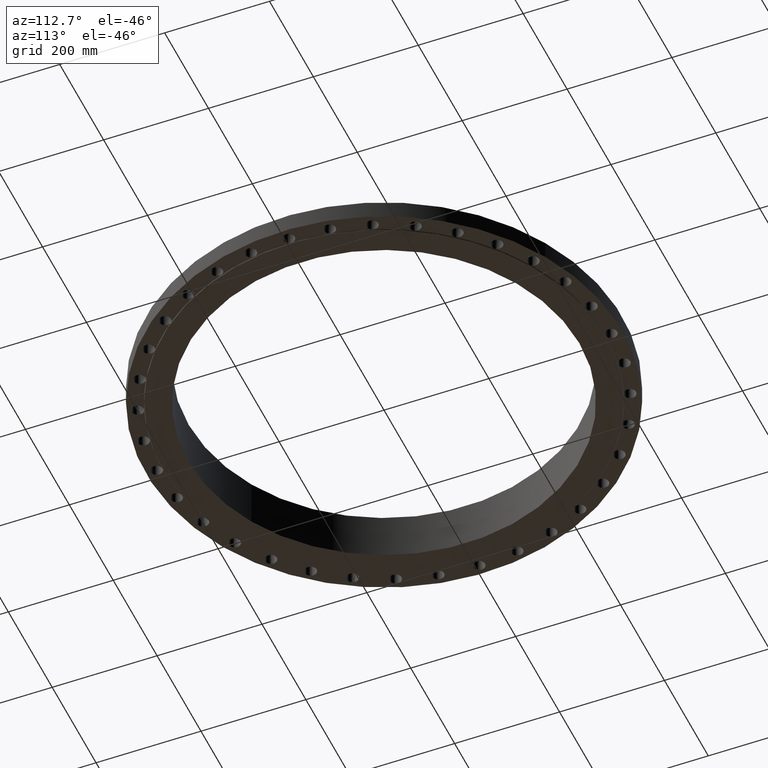
[diagram: clean part render]
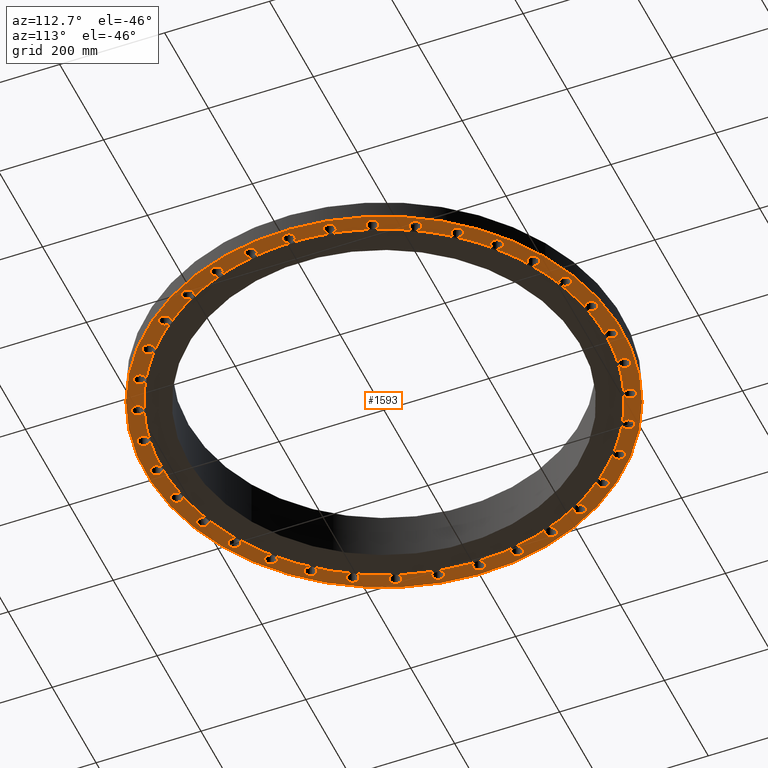
[diagram: same view with one face highlighted and labeled with its STEP entity id]
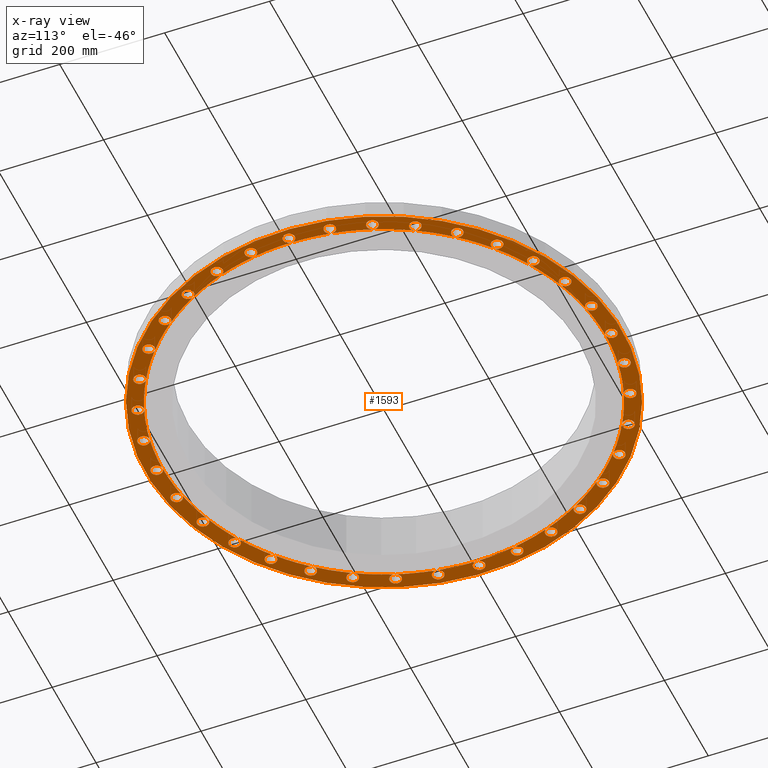
[diagram: x-ray of the same camera — body ghosted, the highlighted face saturated]
A machine part, auxiliary view. The second image highlights one B-rep face of the part: STEP entity #1593.
The next image is the same camera in x-ray: the body ghosted, the highlighted face saturated — about 0% of this face is hidden behind the body in this view.
In plain terms, the highlighted planar face has unit normal (0, 0, -1).
Its self-contained STEP definition (entity closure, byte-faithful):
#51=AXIS2_PLACEMENT_3D('Circle Axis2P3D',#49,#50,$) ;
#77=AXIS2_PLACEMENT_3D('Circle Axis2P3D',#75,#76,$) ;
#84=AXIS2_PLACEMENT_3D('Circle Axis2P3D',#82,#83,$) ;
#107=AXIS2_PLACEMENT_3D('Circle Axis2P3D',#105,#106,$) ;
#142=AXIS2_PLACEMENT_3D('Circle Axis2P3D',#140,#141,$) ;
#456=AXIS2_PLACEMENT_3D('Circle Axis2P3D',#454,#455,$) ;
#463=AXIS2_PLACEMENT_3D('Circle Axis2P3D',#461,#462,$) ;
#470=AXIS2_PLACEMENT_3D('Circle Axis2P3D',#468,#469,$) ;
#477=AXIS2_PLACEMENT_3D('Circle Axis2P3D',#475,#476,$) ;
#484=AXIS2_PLACEMENT_3D('Circle Axis2P3D',#482,#483,$) ;
#491=AXIS2_PLACEMENT_3D('Circle Axis2P3D',#489,#490,$) ;
#498=AXIS2_PLACEMENT_3D('Circle Axis2P3D',#496,#497,$) ;
#503=AXIS2_PLACEMENT_3D('Circle Axis2P3D',#501,#502,$) ;
#510=AXIS2_PLACEMENT_3D('Circle Axis2P3D',#508,#509,$) ;
#517=AXIS2_PLACEMENT_3D('Circle Axis2P3D',#515,#516,$) ;
#524=AXIS2_PLACEMENT_3D('Circle Axis2P3D',#522,#523,$) ;
#531=AXIS2_PLACEMENT_3D('Circle Axis2P3D',#529,#530,$) ;
#538=AXIS2_PLACEMENT_3D('Circle Axis2P3D',#536,#537,$) ;
#545=AXIS2_PLACEMENT_3D('Circle Axis2P3D',#543,#544,$) ;
#552=AXIS2_PLACEMENT_3D('Circle Axis2P3D',#550,#551,$) ;
#559=AXIS2_PLACEMENT_3D('Circle Axis2P3D',#557,#558,$) ;
#566=AXIS2_PLACEMENT_3D('Circle Axis2P3D',#564,#565,$) ;
#573=AXIS2_PLACEMENT_3D('Circle Axis2P3D',#571,#572,$) ;
#580=AXIS2_PLACEMENT_3D('Circle Axis2P3D',#578,#579,$) ;
#617=AXIS2_PLACEMENT_3D('Circle Axis2P3D',#615,#616,$) ;
#624=AXIS2_PLACEMENT_3D('Circle Axis2P3D',#622,#623,$) ;
#631=AXIS2_PLACEMENT_3D('Circle Axis2P3D',#629,#630,$) ;
#638=AXIS2_PLACEMENT_3D('Circle Axis2P3D',#636,#637,$) ;
#645=AXIS2_PLACEMENT_3D('Circle Axis2P3D',#643,#644,$) ;
#652=AXIS2_PLACEMENT_3D('Circle Axis2P3D',#650,#651,$) ;
#659=AXIS2_PLACEMENT_3D('Circle Axis2P3D',#657,#658,$) ;
#666=AXIS2_PLACEMENT_3D('Circle Axis2P3D',#664,#665,$) ;
#673=AXIS2_PLACEMENT_3D('Circle Axis2P3D',#671,#672,$) ;
#680=AXIS2_PLACEMENT_3D('Circle Axis2P3D',#678,#679,$) ;
#687=AXIS2_PLACEMENT_3D('Circle Axis2P3D',#685,#686,$) ;
#694=AXIS2_PLACEMENT_3D('Circle Axis2P3D',#692,#693,$) ;
#701=AXIS2_PLACEMENT_3D('Circle Axis2P3D',#699,#700,$) ;
#708=AXIS2_PLACEMENT_3D('Circle Axis2P3D',#706,#707,$) ;
#715=AXIS2_PLACEMENT_3D('Circle Axis2P3D',#713,#714,$) ;
#722=AXIS2_PLACEMENT_3D('Circle Axis2P3D',#720,#721,$) ;
#729=AXIS2_PLACEMENT_3D('Circle Axis2P3D',#727,#728,$) ;
#736=AXIS2_PLACEMENT_3D('Circle Axis2P3D',#734,#735,$) ;
#743=AXIS2_PLACEMENT_3D('Circle Axis2P3D',#741,#742,$) ;
#774=AXIS2_PLACEMENT_3D('Plane Axis2P3D',#771,#772,#773) ;
#782=AXIS2_PLACEMENT_3D('Circle Axis2P3D',#780,#781,$) ;
#789=AXIS2_PLACEMENT_3D('Circle Axis2P3D',#787,#788,$) ;
#796=AXIS2_PLACEMENT_3D('Circle Axis2P3D',#794,#795,$) ;
#801=AXIS2_PLACEMENT_3D('Circle Axis2P3D',#799,#800,$) ;
#808=AXIS2_PLACEMENT_3D('Circle Axis2P3D',#806,#807,$) ;
#815=AXIS2_PLACEMENT_3D('Circle Axis2P3D',#813,#814,$) ;
#820=AXIS2_PLACEMENT_3D('Circle Axis2P3D',#818,#819,$) ;
#827=AXIS2_PLACEMENT_3D('Circle Axis2P3D',#825,#826,$) ;
#834=AXIS2_PLACEMENT_3D('Circle Axis2P3D',#832,#833,$) ;
#839=AXIS2_PLACEMENT_3D('Circle Axis2P3D',#837,#838,$) ;
#846=AXIS2_PLACEMENT_3D('Circle Axis2P3D',#844,#845,$) ;
#853=AXIS2_PLACEMENT_3D('Circle Axis2P3D',#851,#852,$) ;
#858=AXIS2_PLACEMENT_3D('Circle Axis2P3D',#856,#857,$) ;
#865=AXIS2_PLACEMENT_3D('Circle Axis2P3D',#863,#864,$) ;
#872=AXIS2_PLACEMENT_3D('Circle Axis2P3D',#870,#871,$) ;
#877=AXIS2_PLACEMENT_3D('Circle Axis2P3D',#875,#876,$) ;
#884=AXIS2_PLACEMENT_3D('Circle Axis2P3D',#882,#883,$) ;
#891=AXIS2_PLACEMENT_3D('Circle Axis2P3D',#889,#890,$) ;
#896=AXIS2_PLACEMENT_3D('Circle Axis2P3D',#894,#895,$) ;
#903=AXIS2_PLACEMENT_3D('Circle Axis2P3D',#901,#902,$) ;
#910=AXIS2_PLACEMENT_3D('Circle Axis2P3D',#908,#909,$) ;
#915=AXIS2_PLACEMENT_3D('Circle Axis2P3D',#913,#914,$) ;
#922=AXIS2_PLACEMENT_3D('Circle Axis2P3D',#920,#921,$) ;
#929=AXIS2_PLACEMENT_3D('Circle Axis2P3D',#927,#928,$) ;
#934=AXIS2_PLACEMENT_3D('Circle Axis2P3D',#932,#933,$) ;
#941=AXIS2_PLACEMENT_3D('Circle Axis2P3D',#939,#940,$) ;
#948=AXIS2_PLACEMENT_3D('Circle Axis2P3D',#946,#947,$) ;
#953=AXIS2_PLACEMENT_3D('Circle Axis2P3D',#951,#952,$) ;
#960=AXIS2_PLACEMENT_3D('Circle Axis2P3D',#958,#959,$) ;
#967=AXIS2_PLACEMENT_3D('Circle Axis2P3D',#965,#966,$) ;
#972=AXIS2_PLACEMENT_3D('Circle Axis2P3D',#970,#971,$) ;
#979=AXIS2_PLACEMENT_3D('Circle Axis2P3D',#977,#978,$) ;
#986=AXIS2_PLACEMENT_3D('Circle Axis2P3D',#984,#985,$) ;
#991=AXIS2_PLACEMENT_3D('Circle Axis2P3D',#989,#990,$) ;
#998=AXIS2_PLACEMENT_3D('Circle Axis2P3D',#996,#997,$) ;
#1005=AXIS2_PLACEMENT_3D('Circle Axis2P3D',#1003,#1004,$) ;
#1010=AXIS2_PLACEMENT_3D('Circle Axis2P3D',#1008,#1009,$) ;
#1017=AXIS2_PLACEMENT_3D('Circle Axis2P3D',#1015,#1016,$) ;
#1024=AXIS2_PLACEMENT_3D('Circle Axis2P3D',#1022,#1023,$) ;
#1029=AXIS2_PLACEMENT_3D('Circle Axis2P3D',#1027,#1028,$) ;
#1036=AXIS2_PLACEMENT_3D('Circle Axis2P3D',#1034,#1035,$) ;
#1043=AXIS2_PLACEMENT_3D('Circle Axis2P3D',#1041,#1042,$) ;
#1048=AXIS2_PLACEMENT_3D('Circle Axis2P3D',#1046,#1047,$) ;
#1055=AXIS2_PLACEMENT_3D('Circle Axis2P3D',#1053,#1054,$) ;
#1062=AXIS2_PLACEMENT_3D('Circle Axis2P3D',#1060,#1061,$) ;
#1067=AXIS2_PLACEMENT_3D('Circle Axis2P3D',#1065,#1066,$) ;
#1074=AXIS2_PLACEMENT_3D('Circle Axis2P3D',#1072,#1073,$) ;
#1081=AXIS2_PLACEMENT_3D('Circle Axis2P3D',#1079,#1080,$) ;
#1086=AXIS2_PLACEMENT_3D('Circle Axis2P3D',#1084,#1085,$) ;
#1093=AXIS2_PLACEMENT_3D('Circle Axis2P3D',#1091,#1092,$) ;
#1100=AXIS2_PLACEMENT_3D('Circle Axis2P3D',#1098,#1099,$) ;
#1105=AXIS2_PLACEMENT_3D('Circle Axis2P3D',#1103,#1104,$) ;
#1112=AXIS2_PLACEMENT_3D('Circle Axis2P3D',#1110,#1111,$) ;
#1119=AXIS2_PLACEMENT_3D('Circle Axis2P3D',#1117,#1118,$) ;
#1124=AXIS2_PLACEMENT_3D('Circle Axis2P3D',#1122,#1123,$) ;
#1131=AXIS2_PLACEMENT_3D('Circle Axis2P3D',#1129,#1130,$) ;
#1138=AXIS2_PLACEMENT_3D('Circle Axis2P3D',#1136,#1137,$) ;
#1143=AXIS2_PLACEMENT_3D('Circle Axis2P3D',#1141,#1142,$) ;
#1150=AXIS2_PLACEMENT_3D('Circle Axis2P3D',#1148,#1149,$) ;
#1157=AXIS2_PLACEMENT_3D('Circle Axis2P3D',#1155,#1156,$) ;
#1162=AXIS2_PLACEMENT_3D('Circle Axis2P3D',#1160,#1161,$) ;
#1169=AXIS2_PLACEMENT_3D('Circle Axis2P3D',#1167,#1168,$) ;
#1176=AXIS2_PLACEMENT_3D('Circle Axis2P3D',#1174,#1175,$) ;
#1181=AXIS2_PLACEMENT_3D('Circle Axis2P3D',#1179,#1180,$) ;
#1188=AXIS2_PLACEMENT_3D('Circle Axis2P3D',#1186,#1187,$) ;
#1195=AXIS2_PLACEMENT_3D('Circle Axis2P3D',#1193,#1194,$) ;
#1200=AXIS2_PLACEMENT_3D('Circle Axis2P3D',#1198,#1199,$) ;
#1207=AXIS2_PLACEMENT_3D('Circle Axis2P3D',#1205,#1206,$) ;
#1214=AXIS2_PLACEMENT_3D('Circle Axis2P3D',#1212,#1213,$) ;
#1219=AXIS2_PLACEMENT_3D('Circle Axis2P3D',#1217,#1218,$) ;
#1226=AXIS2_PLACEMENT_3D('Circle Axis2P3D',#1224,#1225,$) ;
#1233=AXIS2_PLACEMENT_3D('Circle Axis2P3D',#1231,#1232,$) ;
#1238=AXIS2_PLACEMENT_3D('Circle Axis2P3D',#1236,#1237,$) ;
#1245=AXIS2_PLACEMENT_3D('Circle Axis2P3D',#1243,#1244,$) ;
#1252=AXIS2_PLACEMENT_3D('Circle Axis2P3D',#1250,#1251,$) ;
#1257=AXIS2_PLACEMENT_3D('Circle Axis2P3D',#1255,#1256,$) ;
#1264=AXIS2_PLACEMENT_3D('Circle Axis2P3D',#1262,#1263,$) ;
#1271=AXIS2_PLACEMENT_3D('Circle Axis2P3D',#1269,#1270,$) ;
#1276=AXIS2_PLACEMENT_3D('Circle Axis2P3D',#1274,#1275,$) ;
#1283=AXIS2_PLACEMENT_3D('Circle Axis2P3D',#1281,#1282,$) ;
#1290=AXIS2_PLACEMENT_3D('Circle Axis2P3D',#1288,#1289,$) ;
#1295=AXIS2_PLACEMENT_3D('Circle Axis2P3D',#1293,#1294,$) ;
#1302=AXIS2_PLACEMENT_3D('Circle Axis2P3D',#1300,#1301,$) ;
#1309=AXIS2_PLACEMENT_3D('Circle Axis2P3D',#1307,#1308,$) ;
#1314=AXIS2_PLACEMENT_3D('Circle Axis2P3D',#1312,#1313,$) ;
#1321=AXIS2_PLACEMENT_3D('Circle Axis2P3D',#1319,#1320,$) ;
#1328=AXIS2_PLACEMENT_3D('Circle Axis2P3D',#1326,#1327,$) ;
#1333=AXIS2_PLACEMENT_3D('Circle Axis2P3D',#1331,#1332,$) ;
#1340=AXIS2_PLACEMENT_3D('Circle Axis2P3D',#1338,#1339,$) ;
#1347=AXIS2_PLACEMENT_3D('Circle Axis2P3D',#1345,#1346,$) ;
#1352=AXIS2_PLACEMENT_3D('Circle Axis2P3D',#1350,#1351,$) ;
#1359=AXIS2_PLACEMENT_3D('Circle Axis2P3D',#1357,#1358,$) ;
#1366=AXIS2_PLACEMENT_3D('Circle Axis2P3D',#1364,#1365,$) ;
#1371=AXIS2_PLACEMENT_3D('Circle Axis2P3D',#1369,#1370,$) ;
#1378=AXIS2_PLACEMENT_3D('Circle Axis2P3D',#1376,#1377,$) ;
#1385=AXIS2_PLACEMENT_3D('Circle Axis2P3D',#1383,#1384,$) ;
#1390=AXIS2_PLACEMENT_3D('Circle Axis2P3D',#1388,#1389,$) ;
#1397=AXIS2_PLACEMENT_3D('Circle Axis2P3D',#1395,#1396,$) ;
#1404=AXIS2_PLACEMENT_3D('Circle Axis2P3D',#1402,#1403,$) ;
#1409=AXIS2_PLACEMENT_3D('Circle Axis2P3D',#1407,#1408,$) ;
#1416=AXIS2_PLACEMENT_3D('Circle Axis2P3D',#1414,#1415,$) ;
#1423=AXIS2_PLACEMENT_3D('Circle Axis2P3D',#1421,#1422,$) ;
#1428=AXIS2_PLACEMENT_3D('Circle Axis2P3D',#1426,#1427,$) ;
#1435=AXIS2_PLACEMENT_3D('Circle Axis2P3D',#1433,#1434,$) ;
#1442=AXIS2_PLACEMENT_3D('Circle Axis2P3D',#1440,#1441,$) ;
#44=CARTESIAN_POINT('Vertex',(16.6788636728,0.210947236987,0.)) ;
#49=CARTESIAN_POINT('Axis2P3D Location',(17.0650000001,0.,0.)) ;
#53=CARTESIAN_POINT('Vertex',(17.4511363273,-0.210947236987,0.)) ;
#75=CARTESIAN_POINT('Axis2P3D Location',(17.0650000001,0.,0.)) ;
#79=CARTESIAN_POINT('Vertex',(16.6250000001,1.88379168348E-014,1.95818864186E-015)) ;
#82=CARTESIAN_POINT('Axis2P3D Location',(17.0650000001,0.,0.)) ;
#105=CARTESIAN_POINT('Axis2P3D Location',(0.,0.,1.95818864186E-015)) ;
#109=CARTESIAN_POINT('Vertex',(-8.56973150258,-15.6867882939,1.95818864186E-015)) ;
#111=CARTESIAN_POINT('Vertex',(8.56973150258,15.6867882939,1.95818864186E-015)) ;
#140=CARTESIAN_POINT('Axis2P3D Location',(0.,0.,1.95818864186E-015)) ;
#451=CARTESIAN_POINT('Vertex',(7.97044957933,14.5898100915,1.95818864186E-015)) ;
#454=CARTESIAN_POINT('Axis2P3D Location',(0.,0.,1.95818864186E-015)) ;
#458=CARTESIAN_POINT('Vertex',(8.31250000003,14.397672338,0.)) ;
#461=CARTESIAN_POINT('Axis2P3D Location',(0.,0.,1.95818864186E-015)) ;
#465=CARTESIAN_POINT('Vertex',(10.6863440111,12.7354888669,0.)) ;
#468=CARTESIAN_POINT('Axis2P3D Location',(0.,0.,1.95818864186E-015)) ;
#472=CARTESIAN_POINT('Vertex',(12.7354888669,10.6863440111,0.)) ;
#475=CARTESIAN_POINT('Axis2P3D Location',(0.,0.,1.95818864186E-015)) ;
#479=CARTESIAN_POINT('Vertex',(14.397672338,8.31250000003,0.)) ;
#482=CARTESIAN_POINT('Axis2P3D Location',(0.,0.,1.95818864186E-015)) ;
#486=CARTESIAN_POINT('Vertex',(15.6223898206,5.68608488281,0.)) ;
#489=CARTESIAN_POINT('Axis2P3D Location',(0.,0.,1.95818864186E-015)) ;
#493=CARTESIAN_POINT('Vertex',(16.3724288939,2.88690095372,0.)) ;
#496=CARTESIAN_POINT('Axis2P3D Location',(0.,0.,1.95818864186E-015)) ;
#501=CARTESIAN_POINT('Axis2P3D Location',(0.,0.,1.95818864186E-015)) ;
#505=CARTESIAN_POINT('Vertex',(16.3724288939,-2.88690095372,0.)) ;
#508=CARTESIAN_POINT('Axis2P3D Location',(0.,0.,1.95818864186E-015)) ;
#512=CARTESIAN_POINT('Vertex',(15.6223898206,-5.68608488281,0.)) ;
#515=CARTESIAN_POINT('Axis2P3D Location',(0.,0.,1.95818864186E-015)) ;
#519=CARTESIAN_POINT('Vertex',(14.397672338,-8.31250000003,0.)) ;
#522=CARTESIAN_POINT('Axis2P3D Location',(0.,0.,1.95818864186E-015)) ;
#526=CARTESIAN_POINT('Vertex',(12.7354888669,-10.6863440111,0.)) ;
#529=CARTESIAN_POINT('Axis2P3D Location',(0.,0.,1.95818864186E-015)) ;
#533=CARTESIAN_POINT('Vertex',(10.6863440111,-12.7354888669,0.)) ;
#536=CARTESIAN_POINT('Axis2P3D Location',(0.,0.,1.95818864186E-015)) ;
#540=CARTESIAN_POINT('Vertex',(8.31250000003,-14.397672338,0.)) ;
#543=CARTESIAN_POINT('Axis2P3D Location',(0.,0.,1.95818864186E-015)) ;
#547=CARTESIAN_POINT('Vertex',(5.68608488281,-15.6223898206,0.)) ;
#550=CARTESIAN_POINT('Axis2P3D Location',(0.,0.,1.95818864186E-015)) ;
#554=CARTESIAN_POINT('Vertex',(2.88690095372,-16.3724288939,0.)) ;
#557=CARTESIAN_POINT('Axis2P3D Location',(0.,0.,1.95818864186E-015)) ;
#561=CARTESIAN_POINT('Vertex',(1.87736195311E-015,-16.6250000001,0.)) ;
#564=CARTESIAN_POINT('Axis2P3D Location',(0.,0.,1.95818864186E-015)) ;
#568=CARTESIAN_POINT('Vertex',(-2.88690095372,-16.3724288939,0.)) ;
#571=CARTESIAN_POINT('Axis2P3D Location',(0.,0.,1.95818864186E-015)) ;
#575=CARTESIAN_POINT('Vertex',(-5.68608488281,-15.6223898206,0.)) ;
#578=CARTESIAN_POINT('Axis2P3D Location',(0.,0.,1.95818864186E-015)) ;
#582=CARTESIAN_POINT('Vertex',(-7.97044957933,-14.5898100915,1.95818864186E-015)) ;
#615=CARTESIAN_POINT('Axis2P3D Location',(0.,0.,1.95818864186E-015)) ;
#619=CARTESIAN_POINT('Vertex',(-8.31250000003,-14.397672338,0.)) ;
#622=CARTESIAN_POINT('Axis2P3D Location',(0.,0.,1.95818864186E-015)) ;
#626=CARTESIAN_POINT('Vertex',(-10.6863440111,-12.7354888669,0.)) ;
#629=CARTESIAN_POINT('Axis2P3D Location',(0.,0.,1.95818864186E-015)) ;
#633=CARTESIAN_POINT('Vertex',(-12.7354888669,-10.6863440111,0.)) ;
#636=CARTESIAN_POINT('Axis2P3D Location',(0.,0.,1.95818864186E-015)) ;
#640=CARTESIAN_POINT('Vertex',(-14.397672338,-8.31250000003,0.)) ;
#643=CARTESIAN_POINT('Axis2P3D Location',(0.,0.,1.95818864186E-015)) ;
#647=CARTESIAN_POINT('Vertex',(-15.6223898206,-5.68608488281,0.)) ;
#650=CARTESIAN_POINT('Axis2P3D Location',(0.,0.,1.95818864186E-015)) ;
#654=CARTESIAN_POINT('Vertex',(-16.3724288939,-2.88690095372,0.)) ;
#657=CARTESIAN_POINT('Axis2P3D Location',(0.,0.,1.95818864186E-015)) ;
#661=CARTESIAN_POINT('Vertex',(-16.6250000001,0.,0.)) ;
#664=CARTESIAN_POINT('Axis2P3D Location',(0.,0.,1.95818864186E-015)) ;
#668=CARTESIAN_POINT('Vertex',(-16.3724288939,2.88690095372,0.)) ;
#671=CARTESIAN_POINT('Axis2P3D Location',(0.,0.,1.95818864186E-015)) ;
#675=CARTESIAN_POINT('Vertex',(-15.6223898206,5.68608488281,0.)) ;
#678=CARTESIAN_POINT('Axis2P3D Location',(0.,0.,1.95818864186E-015)) ;
#682=CARTESIAN_POINT('Vertex',(-14.397672338,8.31250000003,0.)) ;
#685=CARTESIAN_POINT('Axis2P3D Location',(0.,0.,1.95818864186E-015)) ;
#689=CARTESIAN_POINT('Vertex',(-12.7354888669,10.6863440111,0.)) ;
#692=CARTESIAN_POINT('Axis2P3D Location',(0.,0.,1.95818864186E-015)) ;
#696=CARTESIAN_POINT('Vertex',(-10.6863440111,12.7354888669,0.)) ;
#699=CARTESIAN_POINT('Axis2P3D Location',(0.,0.,1.95818864186E-015)) ;
#703=CARTESIAN_POINT('Vertex',(-8.31250000003,14.397672338,0.)) ;
#706=CARTESIAN_POINT('Axis2P3D Location',(0.,0.,1.95818864186E-015)) ;
#710=CARTESIAN_POINT('Vertex',(-5.68608488281,15.6223898206,0.)) ;
#713=CARTESIAN_POINT('Axis2P3D Location',(0.,0.,1.95818864186E-015)) ;
#717=CARTESIAN_POINT('Vertex',(-2.88690095372,16.3724288939,0.)) ;
#720=CARTESIAN_POINT('Axis2P3D Location',(0.,0.,1.95818864186E-015)) ;
#724=CARTESIAN_POINT('Vertex',(-2.21427599862E-015,16.6250000001,0.)) ;
#727=CARTESIAN_POINT('Axis2P3D Location',(0.,0.,1.95818864186E-015)) ;
#731=CARTESIAN_POINT('Vertex',(2.88690095372,16.3724288939,0.)) ;
#734=CARTESIAN_POINT('Axis2P3D Location',(0.,0.,1.95818864186E-015)) ;
#738=CARTESIAN_POINT('Vertex',(5.68608488281,15.6223898206,0.)) ;
#741=CARTESIAN_POINT('Axis2P3D Location',(0.,0.,1.95818864186E-015)) ;
#771=CARTESIAN_POINT('Axis2P3D Location',(0.,16.6250000001,0.)) ;
#780=CARTESIAN_POINT('Axis2P3D Location',(16.0358545738,-5.83657374588,0.)) ;
#784=CARTESIAN_POINT('Vertex',(16.3265558269,-6.16686570983,0.)) ;
#787=CARTESIAN_POINT('Axis2P3D Location',(16.0358545738,-5.83657374588,0.)) ;
#791=CARTESIAN_POINT('Vertex',(15.7451533207,-5.50628178192,0.)) ;
#794=CARTESIAN_POINT('Axis2P3D Location',(16.0358545738,-5.83657374588,0.)) ;
#799=CARTESIAN_POINT('Axis2P3D Location',(16.8057443052,-2.9633061519,0.)) ;
#803=CARTESIAN_POINT('Vertex',(17.1493837507,-3.23810049591,-1.1189649382E-015)) ;
#806=CARTESIAN_POINT('Axis2P3D Location',(16.8057443052,-2.9633061519,0.)) ;
#810=CARTESIAN_POINT('Vertex',(16.4621048597,-2.68851180788,0.)) ;
#813=CARTESIAN_POINT('Axis2P3D Location',(16.8057443052,-2.9633061519,0.)) ;
#818=CARTESIAN_POINT('Axis2P3D Location',(16.8057443052,2.9633061519,0.)) ;
#822=CARTESIAN_POINT('Vertex',(17.2226449573,2.82261554699,-1.1189649382E-015)) ;
#825=CARTESIAN_POINT('Axis2P3D Location',(16.8057443052,2.9633061519,0.)) ;
#829=CARTESIAN_POINT('Vertex',(16.3888436532,3.1039967568,0.)) ;
#832=CARTESIAN_POINT('Axis2P3D Location',(16.8057443052,2.9633061519,0.)) ;
#837=CARTESIAN_POINT('Axis2P3D Location',(16.0358545738,5.83657374588,0.)) ;
#841=CARTESIAN_POINT('Vertex',(16.4708522353,5.77041458589,0.)) ;
#844=CARTESIAN_POINT('Axis2P3D Location',(16.0358545738,5.83657374588,0.)) ;
#848=CARTESIAN_POINT('Vertex',(15.6008569122,5.90273290586,0.)) ;
#851=CARTESIAN_POINT('Axis2P3D Location',(16.0358545738,5.83657374588,0.)) ;
#856=CARTESIAN_POINT('Axis2P3D Location',(14.7787235156,8.53250000003,0.)) ;
#860=CARTESIAN_POINT('Vertex',(15.2186010028,8.54288249756,0.)) ;
#863=CARTESIAN_POINT('Axis2P3D Location',(14.7787235156,8.53250000003,0.)) ;
#867=CARTESIAN_POINT('Vertex',(14.3388460284,8.52211750251,0.)) ;
#870=CARTESIAN_POINT('Axis2P3D Location',(14.7787235156,8.53250000003,0.)) ;
#875=CARTESIAN_POINT('Axis2P3D Location',(13.0725484219,10.9691705593,0.)) ;
#879=CARTESIAN_POINT('Vertex',(13.5039402799,11.0557792475,0.)) ;
#882=CARTESIAN_POINT('Axis2P3D Location',(13.0725484219,10.9691705593,0.)) ;
#886=CARTESIAN_POINT('Vertex',(12.6411565639,10.8825618712,0.)) ;
#889=CARTESIAN_POINT('Axis2P3D Location',(13.0725484219,10.9691705593,0.)) ;
#894=CARTESIAN_POINT('Axis2P3D Location',(10.9691705593,13.0725484219,0.)) ;
#898=CARTESIAN_POINT('Vertex',(11.3789691648,13.2327517394,0.)) ;
#901=CARTESIAN_POINT('Axis2P3D Location',(10.9691705593,13.0725484219,0.)) ;
#905=CARTESIAN_POINT('Vertex',(10.5593719539,12.9123451043,0.)) ;
#908=CARTESIAN_POINT('Axis2P3D Location',(10.9691705593,13.0725484219,0.)) ;
#913=CARTESIAN_POINT('Axis2P3D Location',(8.53250000003,14.7787235156,0.)) ;
#917=CARTESIAN_POINT('Vertex',(8.90825382974,15.0076537659,0.)) ;
#920=CARTESIAN_POINT('Axis2P3D Location',(8.53250000003,14.7787235156,0.)) ;
#924=CARTESIAN_POINT('Vertex',(8.15674617033,14.5497932654,0.)) ;
#927=CARTESIAN_POINT('Axis2P3D Location',(8.53250000003,14.7787235156,0.)) ;
#932=CARTESIAN_POINT('Axis2P3D Location',(5.83657374588,16.0358545738,0.)) ;
#936=CARTESIAN_POINT('Vertex',(6.16686570983,16.3265558269,0.)) ;
#939=CARTESIAN_POINT('Axis2P3D Location',(5.83657374588,16.0358545738,0.)) ;
#943=CARTESIAN_POINT('Vertex',(5.50628178192,15.7451533207,0.)) ;
#946=CARTESIAN_POINT('Axis2P3D Location',(5.83657374588,16.0358545738,0.)) ;
#951=CARTESIAN_POINT('Axis2P3D Location',(2.9633061519,16.8057443052,0.)) ;
#955=CARTESIAN_POINT('Vertex',(3.23810049591,17.1493837507,0.)) ;
#958=CARTESIAN_POINT('Axis2P3D Location',(2.9633061519,16.8057443052,0.)) ;
#962=CARTESIAN_POINT('Vertex',(2.68851180788,16.4621048597,0.)) ;
#965=CARTESIAN_POINT('Axis2P3D Location',(2.9633061519,16.8057443052,0.)) ;
#970=CARTESIAN_POINT('Axis2P3D Location',(-1.95818864186E-015,17.0650000001,0.)) ;
#974=CARTESIAN_POINT('Vertex',(0.210947236987,17.4511363273,0.)) ;
#977=CARTESIAN_POINT('Axis2P3D Location',(-3.28695950598E-015,17.0650000001,0.)) ;
#981=CARTESIAN_POINT('Vertex',(-0.210947236987,16.6788636728,0.)) ;
#984=CARTESIAN_POINT('Axis2P3D Location',(-1.95818864186E-015,17.0650000001,0.)) ;
#989=CARTESIAN_POINT('Axis2P3D Location',(-2.9633061519,16.8057443052,0.)) ;
#993=CARTESIAN_POINT('Vertex',(-2.82261554699,17.2226449573,-1.1189649382E-015)) ;
#996=CARTESIAN_POINT('Axis2P3D Location',(-2.9633061519,16.8057443052,0.)) ;
#1000=CARTESIAN_POINT('Vertex',(-3.1039967568,16.3888436532,0.)) ;
#1003=CARTESIAN_POINT('Axis2P3D Location',(-2.9633061519,16.8057443052,0.)) ;
#1008=CARTESIAN_POINT('Axis2P3D Location',(-5.83657374588,16.0358545738,0.)) ;
#1012=CARTESIAN_POINT('Vertex',(-5.77041458589,16.4708522353,-1.1189649382E-015)) ;
#1015=CARTESIAN_POINT('Axis2P3D Location',(-5.83657374588,16.0358545738,0.)) ;
#1019=CARTESIAN_POINT('Vertex',(-5.90273290586,15.6008569122,0.)) ;
#1022=CARTESIAN_POINT('Axis2P3D Location',(-5.83657374588,16.0358545738,0.)) ;
#1027=CARTESIAN_POINT('Axis2P3D Location',(-8.53250000003,14.7787235156,0.)) ;
#1031=CARTESIAN_POINT('Vertex',(-8.54288249756,15.2186010028,0.)) ;
#1034=CARTESIAN_POINT('Axis2P3D Location',(-8.53250000003,14.7787235156,0.)) ;
#1038=CARTESIAN_POINT('Vertex',(-8.52211750251,14.3388460284,0.)) ;
#1041=CARTESIAN_POINT('Axis2P3D Location',(-8.53250000003,14.7787235156,0.)) ;
#1046=CARTESIAN_POINT('Axis2P3D Location',(-10.9691705593,13.0725484219,0.)) ;
#1050=CARTESIAN_POINT('Vertex',(-11.0557792475,13.5039402799,0.)) ;
#1053=CARTESIAN_POINT('Axis2P3D Location',(-10.9691705593,13.0725484219,0.)) ;
#1057=CARTESIAN_POINT('Vertex',(-10.8825618712,12.6411565639,0.)) ;
#1060=CARTESIAN_POINT('Axis2P3D Location',(-10.9691705593,13.0725484219,0.)) ;
#1065=CARTESIAN_POINT('Axis2P3D Location',(-13.0725484219,10.9691705593,0.)) ;
#1069=CARTESIAN_POINT('Vertex',(-13.2327517394,11.3789691648,-1.1189649382E-015)) ;
#1072=CARTESIAN_POINT('Axis2P3D Location',(-13.0725484219,10.9691705593,0.)) ;
#1076=CARTESIAN_POINT('Vertex',(-12.9123451043,10.5593719539,0.)) ;
#1079=CARTESIAN_POINT('Axis2P3D Location',(-13.0725484219,10.9691705593,0.)) ;
#1084=CARTESIAN_POINT('Axis2P3D Location',(-14.7787235156,8.53250000003,0.)) ;
#1088=CARTESIAN_POINT('Vertex',(-15.0076537659,8.90825382974,0.)) ;
#1091=CARTESIAN_POINT('Axis2P3D Location',(-14.7787235156,8.53250000003,0.)) ;
#1095=CARTESIAN_POINT('Vertex',(-14.5497932654,8.15674617033,0.)) ;
#1098=CARTESIAN_POINT('Axis2P3D Location',(-14.7787235156,8.53250000003,0.)) ;
#1103=CARTESIAN_POINT('Axis2P3D Location',(-16.0358545738,5.83657374588,0.)) ;
#1107=CARTESIAN_POINT('Vertex',(-16.3265558269,6.16686570983,0.)) ;
#1110=CARTESIAN_POINT('Axis2P3D Location',(-16.0358545738,5.83657374588,0.)) ;
#1114=CARTESIAN_POINT('Vertex',(-15.7451533207,5.50628178192,0.)) ;
#1117=CARTESIAN_POINT('Axis2P3D Location',(-16.0358545738,5.83657374588,0.)) ;
#1122=CARTESIAN_POINT('Axis2P3D Location',(-16.8057443052,2.9633061519,0.)) ;
#1126=CARTESIAN_POINT('Vertex',(-17.1493837507,3.23810049591,0.)) ;
#1129=CARTESIAN_POINT('Axis2P3D Location',(-16.8057443052,2.9633061519,0.)) ;
#1133=CARTESIAN_POINT('Vertex',(-16.4621048597,2.68851180788,0.)) ;
#1136=CARTESIAN_POINT('Axis2P3D Location',(-16.8057443052,2.9633061519,0.)) ;
#1141=CARTESIAN_POINT('Axis2P3D Location',(-17.0650000001,0.,0.)) ;
#1145=CARTESIAN_POINT('Vertex',(-17.4511363273,0.210947236987,0.)) ;
#1148=CARTESIAN_POINT('Axis2P3D Location',(-17.0650000001,-4.47585975282E-015,0.)) ;
#1152=CARTESIAN_POINT('Vertex',(-16.6788636728,-0.210947236987,0.)) ;
#1155=CARTESIAN_POINT('Axis2P3D Location',(-17.0650000001,0.,0.)) ;
#1160=CARTESIAN_POINT('Axis2P3D Location',(-16.8057443052,-2.9633061519,0.)) ;
#1164=CARTESIAN_POINT('Vertex',(-17.2226449573,-2.82261554699,-1.1189649382E-015)) ;
#1167=CARTESIAN_POINT('Axis2P3D Location',(-16.8057443052,-2.9633061519,0.)) ;
#1171=CARTESIAN_POINT('Vertex',(-16.3888436532,-3.1039967568,0.)) ;
#1174=CARTESIAN_POINT('Axis2P3D Location',(-16.8057443052,-2.9633061519,0.)) ;
#1179=CARTESIAN_POINT('Axis2P3D Location',(-16.0358545738,-5.83657374588,0.)) ;
#1183=CARTESIAN_POINT('Vertex',(-16.4708522353,-5.77041458589,-1.1189649382E-015)) ;
#1186=CARTESIAN_POINT('Axis2P3D Location',(-16.0358545738,-5.83657374588,0.)) ;
#1190=CARTESIAN_POINT('Vertex',(-15.6008569122,-5.90273290586,0.)) ;
#1193=CARTESIAN_POINT('Axis2P3D Location',(-16.0358545738,-5.83657374588,0.)) ;
#1198=CARTESIAN_POINT('Axis2P3D Location',(-14.7787235156,-8.53250000003,0.)) ;
#1202=CARTESIAN_POINT('Vertex',(-15.2186010028,-8.54288249756,0.)) ;
#1205=CARTESIAN_POINT('Axis2P3D Location',(-14.7787235156,-8.53250000003,0.)) ;
#1209=CARTESIAN_POINT('Vertex',(-14.3388460284,-8.52211750251,0.)) ;
#1212=CARTESIAN_POINT('Axis2P3D Location',(-14.7787235156,-8.53250000003,0.)) ;
#1217=CARTESIAN_POINT('Axis2P3D Location',(-13.0725484219,-10.9691705593,0.)) ;
#1221=CARTESIAN_POINT('Vertex',(-13.5039402799,-11.0557792475,0.)) ;
#1224=CARTESIAN_POINT('Axis2P3D Location',(-13.0725484219,-10.9691705593,0.)) ;
#1228=CARTESIAN_POINT('Vertex',(-12.6411565639,-10.8825618712,0.)) ;
#1231=CARTESIAN_POINT('Axis2P3D Location',(-13.0725484219,-10.9691705593,0.)) ;
#1236=CARTESIAN_POINT('Axis2P3D Location',(-10.9691705593,-13.0725484219,0.)) ;
#1240=CARTESIAN_POINT('Vertex',(-11.3789691648,-13.2327517394,0.)) ;
#1243=CARTESIAN_POINT('Axis2P3D Location',(-10.9691705593,-13.0725484219,0.)) ;
#1247=CARTESIAN_POINT('Vertex',(-10.5593719539,-12.9123451043,0.)) ;
#1250=CARTESIAN_POINT('Axis2P3D Location',(-10.9691705593,-13.0725484219,0.)) ;
#1255=CARTESIAN_POINT('Axis2P3D Location',(-8.53250000003,-14.7787235156,0.)) ;
#1259=CARTESIAN_POINT('Vertex',(-8.90825382974,-15.0076537659,-1.1189649382E-015)) ;
#1262=CARTESIAN_POINT('Axis2P3D Location',(-8.53250000003,-14.7787235156,0.)) ;
#1266=CARTESIAN_POINT('Vertex',(-8.15674617033,-14.5497932654,0.)) ;
#1269=CARTESIAN_POINT('Axis2P3D Location',(-8.53250000003,-14.7787235156,0.)) ;
#1274=CARTESIAN_POINT('Axis2P3D Location',(-5.83657374588,-16.0358545738,0.)) ;
#1278=CARTESIAN_POINT('Vertex',(-6.16686570983,-16.3265558269,0.)) ;
#1281=CARTESIAN_POINT('Axis2P3D Location',(-5.83657374588,-16.0358545738,0.)) ;
#1285=CARTESIAN_POINT('Vertex',(-5.50628178192,-15.7451533207,0.)) ;
#1288=CARTESIAN_POINT('Axis2P3D Location',(-5.83657374588,-16.0358545738,0.)) ;
#1293=CARTESIAN_POINT('Axis2P3D Location',(-2.9633061519,-16.8057443052,0.)) ;
#1297=CARTESIAN_POINT('Vertex',(-3.23810049591,-17.1493837507,-1.1189649382E-015)) ;
#1300=CARTESIAN_POINT('Axis2P3D Location',(-2.9633061519,-16.8057443052,0.)) ;
#1304=CARTESIAN_POINT('Vertex',(-2.68851180788,-16.4621048597,0.)) ;
#1307=CARTESIAN_POINT('Axis2P3D Location',(-2.9633061519,-16.8057443052,0.)) ;
#1312=CARTESIAN_POINT('Axis2P3D Location',(1.95818864186E-015,-17.0650000001,0.)) ;
#1316=CARTESIAN_POINT('Vertex',(-0.210947236987,-17.4511363273,0.)) ;
#1319=CARTESIAN_POINT('Axis2P3D Location',(-1.39870617276E-015,-17.0650000001,0.)) ;
#1323=CARTESIAN_POINT('Vertex',(0.210947236987,-16.6788636728,0.)) ;
#1326=CARTESIAN_POINT('Axis2P3D Location',(1.95818864186E-015,-17.0650000001,0.)) ;
#1331=CARTESIAN_POINT('Axis2P3D Location',(2.9633061519,-16.8057443052,0.)) ;
#1335=CARTESIAN_POINT('Vertex',(2.82261554699,-17.2226449573,-1.1189649382E-015)) ;
#1338=CARTESIAN_POINT('Axis2P3D Location',(2.9633061519,-16.8057443052,0.)) ;
#1342=CARTESIAN_POINT('Vertex',(3.1039967568,-16.3888436532,0.)) ;
#1345=CARTESIAN_POINT('Axis2P3D Location',(2.9633061519,-16.8057443052,0.)) ;
#1350=CARTESIAN_POINT('Axis2P3D Location',(5.83657374588,-16.0358545738,0.)) ;
#1354=CARTESIAN_POINT('Vertex',(5.77041458589,-16.4708522353,-1.1189649382E-015)) ;
#1357=CARTESIAN_POINT('Axis2P3D Location',(5.83657374588,-16.0358545738,0.)) ;
#1361=CARTESIAN_POINT('Vertex',(5.90273290586,-15.6008569122,0.)) ;
#1364=CARTESIAN_POINT('Axis2P3D Location',(5.83657374588,-16.0358545738,0.)) ;
#1369=CARTESIAN_POINT('Axis2P3D Location',(8.53250000003,-14.7787235156,0.)) ;
#1373=CARTESIAN_POINT('Vertex',(8.54288249756,-15.2186010028,0.)) ;
#1376=CARTESIAN_POINT('Axis2P3D Location',(8.53250000003,-14.7787235156,0.)) ;
#1380=CARTESIAN_POINT('Vertex',(8.52211750251,-14.3388460284,0.)) ;
#1383=CARTESIAN_POINT('Axis2P3D Location',(8.53250000003,-14.7787235156,0.)) ;
#1388=CARTESIAN_POINT('Axis2P3D Location',(10.9691705593,-13.0725484219,0.)) ;
#1392=CARTESIAN_POINT('Vertex',(11.0557792475,-13.5039402799,0.)) ;
#1395=CARTESIAN_POINT('Axis2P3D Location',(10.9691705593,-13.0725484219,0.)) ;
#1399=CARTESIAN_POINT('Vertex',(10.8825618712,-12.6411565639,0.)) ;
#1402=CARTESIAN_POINT('Axis2P3D Location',(10.9691705593,-13.0725484219,0.)) ;
#1407=CARTESIAN_POINT('Axis2P3D Location',(13.0725484219,-10.9691705593,0.)) ;
#1411=CARTESIAN_POINT('Vertex',(13.2327517394,-11.3789691648,-1.1189649382E-015)) ;
#1414=CARTESIAN_POINT('Axis2P3D Location',(13.0725484219,-10.9691705593,0.)) ;
#1418=CARTESIAN_POINT('Vertex',(12.9123451043,-10.5593719539,0.)) ;
#1421=CARTESIAN_POINT('Axis2P3D Location',(13.0725484219,-10.9691705593,0.)) ;
#1426=CARTESIAN_POINT('Axis2P3D Location',(14.7787235156,-8.53250000003,0.)) ;
#1430=CARTESIAN_POINT('Vertex',(15.0076537659,-8.90825382974,0.)) ;
#1433=CARTESIAN_POINT('Axis2P3D Location',(14.7787235156,-8.53250000003,0.)) ;
#1437=CARTESIAN_POINT('Vertex',(14.5497932654,-8.15674617033,0.)) ;
#1440=CARTESIAN_POINT('Axis2P3D Location',(14.7787235156,-8.53250000003,0.)) ;
#50=DIRECTION('Axis2P3D Direction',(0.,-0.,-0.0393700787402)) ;
#76=DIRECTION('Axis2P3D Direction',(0.,-0.,-0.0393700787402)) ;
#83=DIRECTION('Axis2P3D Direction',(0.,-0.,-0.0393700787402)) ;
#106=DIRECTION('Axis2P3D Direction',(0.,0.,-0.0393700787402)) ;
#141=DIRECTION('Axis2P3D Direction',(0.,0.,-0.0393700787402)) ;
#455=DIRECTION('Axis2P3D Direction',(0.,0.,-0.0393700787402)) ;
#462=DIRECTION('Axis2P3D Direction',(0.,0.,-0.0393700787402)) ;
#469=DIRECTION('Axis2P3D Direction',(0.,0.,-0.0393700787402)) ;
#476=DIRECTION('Axis2P3D Direction',(0.,0.,-0.0393700787402)) ;
#483=DIRECTION('Axis2P3D Direction',(0.,0.,-0.0393700787402)) ;
#490=DIRECTION('Axis2P3D Direction',(0.,0.,-0.0393700787402)) ;
#497=DIRECTION('Axis2P3D Direction',(0.,0.,-0.0393700787402)) ;
#502=DIRECTION('Axis2P3D Direction',(0.,0.,-0.0393700787402)) ;
#509=DIRECTION('Axis2P3D Direction',(0.,0.,-0.0393700787402)) ;
#516=DIRECTION('Axis2P3D Direction',(0.,0.,-0.0393700787402)) ;
#523=DIRECTION('Axis2P3D Direction',(0.,0.,-0.0393700787402)) ;
#530=DIRECTION('Axis2P3D Direction',(0.,0.,-0.0393700787402)) ;
#537=DIRECTION('Axis2P3D Direction',(0.,0.,-0.0393700787402)) ;
#544=DIRECTION('Axis2P3D Direction',(0.,0.,-0.0393700787402)) ;
#551=DIRECTION('Axis2P3D Direction',(0.,0.,-0.0393700787402)) ;
#558=DIRECTION('Axis2P3D Direction',(0.,0.,-0.0393700787402)) ;
#565=DIRECTION('Axis2P3D Direction',(0.,0.,-0.0393700787402)) ;
#572=DIRECTION('Axis2P3D Direction',(0.,0.,-0.0393700787402)) ;
#579=DIRECTION('Axis2P3D Direction',(0.,0.,-0.0393700787402)) ;
#616=DIRECTION('Axis2P3D Direction',(0.,0.,-0.0393700787402)) ;
#623=DIRECTION('Axis2P3D Direction',(0.,0.,-0.0393700787402)) ;
#630=DIRECTION('Axis2P3D Direction',(0.,0.,-0.0393700787402)) ;
#637=DIRECTION('Axis2P3D Direction',(0.,0.,-0.0393700787402)) ;
#644=DIRECTION('Axis2P3D Direction',(0.,0.,-0.0393700787402)) ;
#651=DIRECTION('Axis2P3D Direction',(0.,0.,-0.0393700787402)) ;
#658=DIRECTION('Axis2P3D Direction',(0.,0.,-0.0393700787402)) ;
#665=DIRECTION('Axis2P3D Direction',(0.,0.,-0.0393700787402)) ;
#672=DIRECTION('Axis2P3D Direction',(0.,0.,-0.0393700787402)) ;
#679=DIRECTION('Axis2P3D Direction',(0.,0.,-0.0393700787402)) ;
#686=DIRECTION('Axis2P3D Direction',(0.,0.,-0.0393700787402)) ;
#693=DIRECTION('Axis2P3D Direction',(0.,0.,-0.0393700787402)) ;
#700=DIRECTION('Axis2P3D Direction',(0.,0.,-0.0393700787402)) ;
#707=DIRECTION('Axis2P3D Direction',(0.,0.,-0.0393700787402)) ;
#714=DIRECTION('Axis2P3D Direction',(0.,0.,-0.0393700787402)) ;
#721=DIRECTION('Axis2P3D Direction',(0.,0.,-0.0393700787402)) ;
#728=DIRECTION('Axis2P3D Direction',(0.,0.,-0.0393700787402)) ;
#735=DIRECTION('Axis2P3D Direction',(0.,0.,-0.0393700787402)) ;
#742=DIRECTION('Axis2P3D Direction',(0.,0.,-0.0393700787402)) ;
#772=DIRECTION('Axis2P3D Direction',(0.,0.,-0.0393700787402)) ;
#773=DIRECTION('Axis2P3D XDirection',(0.0393700787402,0.,0.)) ;
#781=DIRECTION('Axis2P3D Direction',(0.,0.,-0.0393700787402)) ;
#788=DIRECTION('Axis2P3D Direction',(0.,0.,-0.0393700787402)) ;
#795=DIRECTION('Axis2P3D Direction',(0.,0.,-0.0393700787402)) ;
#800=DIRECTION('Axis2P3D Direction',(0.,0.,-0.0393700787402)) ;
#807=DIRECTION('Axis2P3D Direction',(0.,0.,-0.0393700787402)) ;
#814=DIRECTION('Axis2P3D Direction',(0.,0.,-0.0393700787402)) ;
#819=DIRECTION('Axis2P3D Direction',(0.,0.,-0.0393700787402)) ;
#826=DIRECTION('Axis2P3D Direction',(0.,0.,-0.0393700787402)) ;
#833=DIRECTION('Axis2P3D Direction',(0.,0.,-0.0393700787402)) ;
#838=DIRECTION('Axis2P3D Direction',(0.,0.,-0.0393700787402)) ;
#845=DIRECTION('Axis2P3D Direction',(0.,0.,-0.0393700787402)) ;
#852=DIRECTION('Axis2P3D Direction',(0.,0.,-0.0393700787402)) ;
#857=DIRECTION('Axis2P3D Direction',(0.,0.,-0.0393700787402)) ;
#864=DIRECTION('Axis2P3D Direction',(0.,0.,-0.0393700787402)) ;
#871=DIRECTION('Axis2P3D Direction',(0.,0.,-0.0393700787402)) ;
#876=DIRECTION('Axis2P3D Direction',(0.,0.,-0.0393700787402)) ;
#883=DIRECTION('Axis2P3D Direction',(0.,0.,-0.0393700787402)) ;
#890=DIRECTION('Axis2P3D Direction',(0.,0.,-0.0393700787402)) ;
#895=DIRECTION('Axis2P3D Direction',(0.,0.,-0.0393700787402)) ;
#902=DIRECTION('Axis2P3D Direction',(0.,0.,-0.0393700787402)) ;
#909=DIRECTION('Axis2P3D Direction',(0.,0.,-0.0393700787402)) ;
#914=DIRECTION('Axis2P3D Direction',(0.,0.,-0.0393700787402)) ;
#921=DIRECTION('Axis2P3D Direction',(0.,0.,-0.0393700787402)) ;
#928=DIRECTION('Axis2P3D Direction',(0.,0.,-0.0393700787402)) ;
#933=DIRECTION('Axis2P3D Direction',(0.,0.,-0.0393700787402)) ;
#940=DIRECTION('Axis2P3D Direction',(0.,0.,-0.0393700787402)) ;
#947=DIRECTION('Axis2P3D Direction',(0.,0.,-0.0393700787402)) ;
#952=DIRECTION('Axis2P3D Direction',(0.,0.,-0.0393700787402)) ;
#959=DIRECTION('Axis2P3D Direction',(0.,0.,-0.0393700787402)) ;
#966=DIRECTION('Axis2P3D Direction',(0.,0.,-0.0393700787402)) ;
#971=DIRECTION('Axis2P3D Direction',(0.,0.,-0.0393700787402)) ;
#978=DIRECTION('Axis2P3D Direction',(0.,0.,-0.0393700787402)) ;
#985=DIRECTION('Axis2P3D Direction',(0.,0.,-0.0393700787402)) ;
#990=DIRECTION('Axis2P3D Direction',(0.,0.,-0.0393700787402)) ;
#997=DIRECTION('Axis2P3D Direction',(0.,0.,-0.0393700787402)) ;
#1004=DIRECTION('Axis2P3D Direction',(0.,0.,-0.0393700787402)) ;
#1009=DIRECTION('Axis2P3D Direction',(0.,0.,-0.0393700787402)) ;
#1016=DIRECTION('Axis2P3D Direction',(0.,0.,-0.0393700787402)) ;
#1023=DIRECTION('Axis2P3D Direction',(0.,0.,-0.0393700787402)) ;
#1028=DIRECTION('Axis2P3D Direction',(0.,0.,-0.0393700787402)) ;
#1035=DIRECTION('Axis2P3D Direction',(0.,0.,-0.0393700787402)) ;
#1042=DIRECTION('Axis2P3D Direction',(0.,0.,-0.0393700787402)) ;
#1047=DIRECTION('Axis2P3D Direction',(0.,0.,-0.0393700787402)) ;
#1054=DIRECTION('Axis2P3D Direction',(0.,0.,-0.0393700787402)) ;
#1061=DIRECTION('Axis2P3D Direction',(0.,0.,-0.0393700787402)) ;
#1066=DIRECTION('Axis2P3D Direction',(0.,0.,-0.0393700787402)) ;
#1073=DIRECTION('Axis2P3D Direction',(0.,0.,-0.0393700787402)) ;
#1080=DIRECTION('Axis2P3D Direction',(0.,0.,-0.0393700787402)) ;
#1085=DIRECTION('Axis2P3D Direction',(0.,0.,-0.0393700787402)) ;
#1092=DIRECTION('Axis2P3D Direction',(0.,0.,-0.0393700787402)) ;
#1099=DIRECTION('Axis2P3D Direction',(0.,0.,-0.0393700787402)) ;
#1104=DIRECTION('Axis2P3D Direction',(0.,0.,-0.0393700787402)) ;
#1111=DIRECTION('Axis2P3D Direction',(0.,0.,-0.0393700787402)) ;
#1118=DIRECTION('Axis2P3D Direction',(0.,0.,-0.0393700787402)) ;
#1123=DIRECTION('Axis2P3D Direction',(0.,0.,-0.0393700787402)) ;
#1130=DIRECTION('Axis2P3D Direction',(0.,0.,-0.0393700787402)) ;
#1137=DIRECTION('Axis2P3D Direction',(0.,0.,-0.0393700787402)) ;
#1142=DIRECTION('Axis2P3D Direction',(0.,0.,-0.0393700787402)) ;
#1149=DIRECTION('Axis2P3D Direction',(0.,0.,-0.0393700787402)) ;
#1156=DIRECTION('Axis2P3D Direction',(0.,0.,-0.0393700787402)) ;
#1161=DIRECTION('Axis2P3D Direction',(0.,0.,-0.0393700787402)) ;
#1168=DIRECTION('Axis2P3D Direction',(0.,0.,-0.0393700787402)) ;
#1175=DIRECTION('Axis2P3D Direction',(0.,0.,-0.0393700787402)) ;
#1180=DIRECTION('Axis2P3D Direction',(0.,0.,-0.0393700787402)) ;
#1187=DIRECTION('Axis2P3D Direction',(0.,0.,-0.0393700787402)) ;
#1194=DIRECTION('Axis2P3D Direction',(0.,0.,-0.0393700787402)) ;
#1199=DIRECTION('Axis2P3D Direction',(0.,0.,-0.0393700787402)) ;
#1206=DIRECTION('Axis2P3D Direction',(0.,0.,-0.0393700787402)) ;
#1213=DIRECTION('Axis2P3D Direction',(0.,0.,-0.0393700787402)) ;
#1218=DIRECTION('Axis2P3D Direction',(0.,0.,-0.0393700787402)) ;
#1225=DIRECTION('Axis2P3D Direction',(0.,0.,-0.0393700787402)) ;
#1232=DIRECTION('Axis2P3D Direction',(0.,0.,-0.0393700787402)) ;
#1237=DIRECTION('Axis2P3D Direction',(0.,0.,-0.0393700787402)) ;
#1244=DIRECTION('Axis2P3D Direction',(0.,0.,-0.0393700787402)) ;
#1251=DIRECTION('Axis2P3D Direction',(0.,0.,-0.0393700787402)) ;
#1256=DIRECTION('Axis2P3D Direction',(0.,0.,-0.0393700787402)) ;
#1263=DIRECTION('Axis2P3D Direction',(0.,0.,-0.0393700787402)) ;
#1270=DIRECTION('Axis2P3D Direction',(0.,0.,-0.0393700787402)) ;
#1275=DIRECTION('Axis2P3D Direction',(0.,0.,-0.0393700787402)) ;
#1282=DIRECTION('Axis2P3D Direction',(0.,0.,-0.0393700787402)) ;
#1289=DIRECTION('Axis2P3D Direction',(0.,0.,-0.0393700787402)) ;
#1294=DIRECTION('Axis2P3D Direction',(0.,0.,-0.0393700787402)) ;
#1301=DIRECTION('Axis2P3D Direction',(0.,0.,-0.0393700787402)) ;
#1308=DIRECTION('Axis2P3D Direction',(0.,0.,-0.0393700787402)) ;
#1313=DIRECTION('Axis2P3D Direction',(0.,0.,-0.0393700787402)) ;
#1320=DIRECTION('Axis2P3D Direction',(0.,0.,-0.0393700787402)) ;
#1327=DIRECTION('Axis2P3D Direction',(0.,0.,-0.0393700787402)) ;
#1332=DIRECTION('Axis2P3D Direction',(0.,0.,-0.0393700787402)) ;
#1339=DIRECTION('Axis2P3D Direction',(0.,0.,-0.0393700787402)) ;
#1346=DIRECTION('Axis2P3D Direction',(0.,0.,-0.0393700787402)) ;
#1351=DIRECTION('Axis2P3D Direction',(0.,0.,-0.0393700787402)) ;
#1358=DIRECTION('Axis2P3D Direction',(0.,0.,-0.0393700787402)) ;
#1365=DIRECTION('Axis2P3D Direction',(0.,0.,-0.0393700787402)) ;
#1370=DIRECTION('Axis2P3D Direction',(0.,0.,-0.0393700787402)) ;
#1377=DIRECTION('Axis2P3D Direction',(0.,0.,-0.0393700787402)) ;
#1384=DIRECTION('Axis2P3D Direction',(0.,0.,-0.0393700787402)) ;
#1389=DIRECTION('Axis2P3D Direction',(0.,0.,-0.0393700787402)) ;
#1396=DIRECTION('Axis2P3D Direction',(0.,0.,-0.0393700787402)) ;
#1403=DIRECTION('Axis2P3D Direction',(0.,0.,-0.0393700787402)) ;
#1408=DIRECTION('Axis2P3D Direction',(0.,0.,-0.0393700787402)) ;
#1415=DIRECTION('Axis2P3D Direction',(0.,0.,-0.0393700787402)) ;
#1422=DIRECTION('Axis2P3D Direction',(0.,0.,-0.0393700787402)) ;
#1427=DIRECTION('Axis2P3D Direction',(0.,0.,-0.0393700787402)) ;
#1434=DIRECTION('Axis2P3D Direction',(0.,0.,-0.0393700787402)) ;
#1441=DIRECTION('Axis2P3D Direction',(0.,0.,-0.0393700787402)) ;
#777=ORIENTED_EDGE('',*,*,#113,.T.) ;
#778=ORIENTED_EDGE('',*,*,#144,.T.) ;
#1446=ORIENTED_EDGE('',*,*,#786,.F.) ;
#1447=ORIENTED_EDGE('',*,*,#793,.F.) ;
#1448=ORIENTED_EDGE('',*,*,#798,.F.) ;
#1449=ORIENTED_EDGE('',*,*,#514,.F.) ;
#1450=ORIENTED_EDGE('',*,*,#805,.F.) ;
#1451=ORIENTED_EDGE('',*,*,#812,.F.) ;
#1452=ORIENTED_EDGE('',*,*,#817,.F.) ;
#1453=ORIENTED_EDGE('',*,*,#507,.F.) ;
#1454=ORIENTED_EDGE('',*,*,#81,.F.) ;
#1455=ORIENTED_EDGE('',*,*,#55,.F.) ;
#1456=ORIENTED_EDGE('',*,*,#86,.F.) ;
#1457=ORIENTED_EDGE('',*,*,#500,.F.) ;
#1458=ORIENTED_EDGE('',*,*,#824,.F.) ;
#1459=ORIENTED_EDGE('',*,*,#831,.F.) ;
#1460=ORIENTED_EDGE('',*,*,#836,.F.) ;
#1461=ORIENTED_EDGE('',*,*,#495,.F.) ;
#1462=ORIENTED_EDGE('',*,*,#843,.F.) ;
#1463=ORIENTED_EDGE('',*,*,#850,.F.) ;
#1464=ORIENTED_EDGE('',*,*,#855,.F.) ;
#1465=ORIENTED_EDGE('',*,*,#488,.F.) ;
#1466=ORIENTED_EDGE('',*,*,#862,.F.) ;
#1467=ORIENTED_EDGE('',*,*,#869,.F.) ;
#1468=ORIENTED_EDGE('',*,*,#874,.F.) ;
#1469=ORIENTED_EDGE('',*,*,#481,.F.) ;
#1470=ORIENTED_EDGE('',*,*,#881,.F.) ;
#1471=ORIENTED_EDGE('',*,*,#888,.F.) ;
#1472=ORIENTED_EDGE('',*,*,#893,.F.) ;
#1473=ORIENTED_EDGE('',*,*,#474,.F.) ;
#1474=ORIENTED_EDGE('',*,*,#900,.F.) ;
#1475=ORIENTED_EDGE('',*,*,#907,.F.) ;
#1476=ORIENTED_EDGE('',*,*,#912,.F.) ;
#1477=ORIENTED_EDGE('',*,*,#467,.F.) ;
#1478=ORIENTED_EDGE('',*,*,#919,.F.) ;
#1479=ORIENTED_EDGE('',*,*,#926,.F.) ;
#1480=ORIENTED_EDGE('',*,*,#931,.F.) ;
#1481=ORIENTED_EDGE('',*,*,#460,.F.) ;
#1482=ORIENTED_EDGE('',*,*,#745,.F.) ;
#1483=ORIENTED_EDGE('',*,*,#938,.F.) ;
#1484=ORIENTED_EDGE('',*,*,#945,.F.) ;
#1485=ORIENTED_EDGE('',*,*,#950,.F.) ;
#1486=ORIENTED_EDGE('',*,*,#740,.F.) ;
#1487=ORIENTED_EDGE('',*,*,#957,.F.) ;
#1488=ORIENTED_EDGE('',*,*,#964,.F.) ;
#1489=ORIENTED_EDGE('',*,*,#969,.F.) ;
#1490=ORIENTED_EDGE('',*,*,#733,.F.) ;
#1491=ORIENTED_EDGE('',*,*,#976,.F.) ;
#1492=ORIENTED_EDGE('',*,*,#983,.F.) ;
#1493=ORIENTED_EDGE('',*,*,#988,.F.) ;
#1494=ORIENTED_EDGE('',*,*,#726,.F.) ;
#1495=ORIENTED_EDGE('',*,*,#995,.F.) ;
#1496=ORIENTED_EDGE('',*,*,#1002,.F.) ;
#1497=ORIENTED_EDGE('',*,*,#1007,.F.) ;
#1498=ORIENTED_EDGE('',*,*,#719,.F.) ;
#1499=ORIENTED_EDGE('',*,*,#1014,.F.) ;
#1500=ORIENTED_EDGE('',*,*,#1021,.F.) ;
#1501=ORIENTED_EDGE('',*,*,#1026,.F.) ;
#1502=ORIENTED_EDGE('',*,*,#712,.F.) ;
#1503=ORIENTED_EDGE('',*,*,#1033,.F.) ;
#1504=ORIENTED_EDGE('',*,*,#1040,.F.) ;
#1505=ORIENTED_EDGE('',*,*,#1045,.F.) ;
#1506=ORIENTED_EDGE('',*,*,#705,.F.) ;
#1507=ORIENTED_EDGE('',*,*,#1052,.F.) ;
#1508=ORIENTED_EDGE('',*,*,#1059,.F.) ;
#1509=ORIENTED_EDGE('',*,*,#1064,.F.) ;
#1510=ORIENTED_EDGE('',*,*,#698,.F.) ;
#1511=ORIENTED_EDGE('',*,*,#1071,.F.) ;
#1512=ORIENTED_EDGE('',*,*,#1078,.F.) ;
#1513=ORIENTED_EDGE('',*,*,#1083,.F.) ;
#1514=ORIENTED_EDGE('',*,*,#691,.F.) ;
#1515=ORIENTED_EDGE('',*,*,#1090,.F.) ;
#1516=ORIENTED_EDGE('',*,*,#1097,.F.) ;
#1517=ORIENTED_EDGE('',*,*,#1102,.F.) ;
#1518=ORIENTED_EDGE('',*,*,#684,.F.) ;
#1519=ORIENTED_EDGE('',*,*,#1109,.F.) ;
#1520=ORIENTED_EDGE('',*,*,#1116,.F.) ;
#1521=ORIENTED_EDGE('',*,*,#1121,.F.) ;
#1522=ORIENTED_EDGE('',*,*,#677,.F.) ;
#1523=ORIENTED_EDGE('',*,*,#1128,.F.) ;
#1524=ORIENTED_EDGE('',*,*,#1135,.F.) ;
#1525=ORIENTED_EDGE('',*,*,#1140,.F.) ;
#1526=ORIENTED_EDGE('',*,*,#670,.F.) ;
#1527=ORIENTED_EDGE('',*,*,#1147,.F.) ;
#1528=ORIENTED_EDGE('',*,*,#1154,.F.) ;
#1529=ORIENTED_EDGE('',*,*,#1159,.F.) ;
#1530=ORIENTED_EDGE('',*,*,#663,.F.) ;
#1531=ORIENTED_EDGE('',*,*,#1166,.F.) ;
#1532=ORIENTED_EDGE('',*,*,#1173,.F.) ;
#1533=ORIENTED_EDGE('',*,*,#1178,.F.) ;
#1534=ORIENTED_EDGE('',*,*,#656,.F.) ;
#1535=ORIENTED_EDGE('',*,*,#1185,.F.) ;
#1536=ORIENTED_EDGE('',*,*,#1192,.F.) ;
#1537=ORIENTED_EDGE('',*,*,#1197,.F.) ;
#1538=ORIENTED_EDGE('',*,*,#649,.F.) ;
#1539=ORIENTED_EDGE('',*,*,#1204,.F.) ;
#1540=ORIENTED_EDGE('',*,*,#1211,.F.) ;
#1541=ORIENTED_EDGE('',*,*,#1216,.F.) ;
#1542=ORIENTED_EDGE('',*,*,#642,.F.) ;
#1543=ORIENTED_EDGE('',*,*,#1223,.F.) ;
#1544=ORIENTED_EDGE('',*,*,#1230,.F.) ;
#1545=ORIENTED_EDGE('',*,*,#1235,.F.) ;
#1546=ORIENTED_EDGE('',*,*,#635,.F.) ;
#1547=ORIENTED_EDGE('',*,*,#1242,.F.) ;
#1548=ORIENTED_EDGE('',*,*,#1249,.F.) ;
#1549=ORIENTED_EDGE('',*,*,#1254,.F.) ;
#1550=ORIENTED_EDGE('',*,*,#628,.F.) ;
#1551=ORIENTED_EDGE('',*,*,#1261,.F.) ;
#1552=ORIENTED_EDGE('',*,*,#1268,.F.) ;
#1553=ORIENTED_EDGE('',*,*,#1273,.F.) ;
#1554=ORIENTED_EDGE('',*,*,#621,.F.) ;
#1555=ORIENTED_EDGE('',*,*,#584,.F.) ;
#1556=ORIENTED_EDGE('',*,*,#1280,.F.) ;
#1557=ORIENTED_EDGE('',*,*,#1287,.F.) ;
#1558=ORIENTED_EDGE('',*,*,#1292,.F.) ;
#1559=ORIENTED_EDGE('',*,*,#577,.F.) ;
#1560=ORIENTED_EDGE('',*,*,#1299,.F.) ;
#1561=ORIENTED_EDGE('',*,*,#1306,.F.) ;
#1562=ORIENTED_EDGE('',*,*,#1311,.F.) ;
#1563=ORIENTED_EDGE('',*,*,#570,.F.) ;
#1564=ORIENTED_EDGE('',*,*,#1318,.F.) ;
#1565=ORIENTED_EDGE('',*,*,#1325,.F.) ;
#1566=ORIENTED_EDGE('',*,*,#1330,.F.) ;
#1567=ORIENTED_EDGE('',*,*,#563,.F.) ;
#1568=ORIENTED_EDGE('',*,*,#1337,.F.) ;
#1569=ORIENTED_EDGE('',*,*,#1344,.F.) ;
#1570=ORIENTED_EDGE('',*,*,#1349,.F.) ;
#1571=ORIENTED_EDGE('',*,*,#556,.F.) ;
#1572=ORIENTED_EDGE('',*,*,#1356,.F.) ;
#1573=ORIENTED_EDGE('',*,*,#1363,.F.) ;
#1574=ORIENTED_EDGE('',*,*,#1368,.F.) ;
#1575=ORIENTED_EDGE('',*,*,#549,.F.) ;
#1576=ORIENTED_EDGE('',*,*,#1375,.F.) ;
#1577=ORIENTED_EDGE('',*,*,#1382,.F.) ;
#1578=ORIENTED_EDGE('',*,*,#1387,.F.) ;
#1579=ORIENTED_EDGE('',*,*,#542,.F.) ;
#1580=ORIENTED_EDGE('',*,*,#1394,.F.) ;
#1581=ORIENTED_EDGE('',*,*,#1401,.F.) ;
#1582=ORIENTED_EDGE('',*,*,#1406,.F.) ;
#1583=ORIENTED_EDGE('',*,*,#535,.F.) ;
#1584=ORIENTED_EDGE('',*,*,#1413,.F.) ;
#1585=ORIENTED_EDGE('',*,*,#1420,.F.) ;
#1586=ORIENTED_EDGE('',*,*,#1425,.F.) ;
#1587=ORIENTED_EDGE('',*,*,#528,.F.) ;
#1588=ORIENTED_EDGE('',*,*,#1432,.F.) ;
#1589=ORIENTED_EDGE('',*,*,#1439,.F.) ;
#1590=ORIENTED_EDGE('',*,*,#1444,.F.) ;
#1591=ORIENTED_EDGE('',*,*,#521,.F.) ;
#1592=FACE_BOUND('',#1445,.T.) ;
#1593=ADVANCED_FACE('PartBody',(#779,#1592),#775,.T.) ;
#52=CIRCLE('generated circle',#51,0.440000000002) ;
#78=CIRCLE('generated circle',#77,0.440000000002) ;
#85=CIRCLE('generated circle',#84,0.440000000002) ;
#108=CIRCLE('generated circle',#107,17.8750000001) ;
#143=CIRCLE('generated circle',#142,17.8750000001) ;
#457=CIRCLE('generated circle',#456,16.6250000001) ;
#464=CIRCLE('generated circle',#463,16.6250000001) ;
#471=CIRCLE('generated circle',#470,16.6250000001) ;
#478=CIRCLE('generated circle',#477,16.6250000001) ;
#485=CIRCLE('generated circle',#484,16.6250000001) ;
#492=CIRCLE('generated circle',#491,16.6250000001) ;
#499=CIRCLE('generated circle',#498,16.6250000001) ;
#504=CIRCLE('generated circle',#503,16.6250000001) ;
#511=CIRCLE('generated circle',#510,16.6250000001) ;
#518=CIRCLE('generated circle',#517,16.6250000001) ;
#525=CIRCLE('generated circle',#524,16.6250000001) ;
#532=CIRCLE('generated circle',#531,16.6250000001) ;
#539=CIRCLE('generated circle',#538,16.6250000001) ;
#546=CIRCLE('generated circle',#545,16.6250000001) ;
#553=CIRCLE('generated circle',#552,16.6250000001) ;
#560=CIRCLE('generated circle',#559,16.6250000001) ;
#567=CIRCLE('generated circle',#566,16.6250000001) ;
#574=CIRCLE('generated circle',#573,16.6250000001) ;
#581=CIRCLE('generated circle',#580,16.6250000001) ;
#618=CIRCLE('generated circle',#617,16.6250000001) ;
#625=CIRCLE('generated circle',#624,16.6250000001) ;
#632=CIRCLE('generated circle',#631,16.6250000001) ;
#639=CIRCLE('generated circle',#638,16.6250000001) ;
#646=CIRCLE('generated circle',#645,16.6250000001) ;
#653=CIRCLE('generated circle',#652,16.6250000001) ;
#660=CIRCLE('generated circle',#659,16.6250000001) ;
#667=CIRCLE('generated circle',#666,16.6250000001) ;
#674=CIRCLE('generated circle',#673,16.6250000001) ;
#681=CIRCLE('generated circle',#680,16.6250000001) ;
#688=CIRCLE('generated circle',#687,16.6250000001) ;
#695=CIRCLE('generated circle',#694,16.6250000001) ;
#702=CIRCLE('generated circle',#701,16.6250000001) ;
#709=CIRCLE('generated circle',#708,16.6250000001) ;
#716=CIRCLE('generated circle',#715,16.6250000001) ;
#723=CIRCLE('generated circle',#722,16.6250000001) ;
#730=CIRCLE('generated circle',#729,16.6250000001) ;
#737=CIRCLE('generated circle',#736,16.6250000001) ;
#744=CIRCLE('generated circle',#743,16.6250000001) ;
#783=CIRCLE('generated circle',#782,0.440000000002) ;
#790=CIRCLE('generated circle',#789,0.440000000002) ;
#797=CIRCLE('generated circle',#796,0.440000000002) ;
#802=CIRCLE('generated circle',#801,0.440000000002) ;
#809=CIRCLE('generated circle',#808,0.440000000002) ;
#816=CIRCLE('generated circle',#815,0.440000000002) ;
#821=CIRCLE('generated circle',#820,0.440000000002) ;
#828=CIRCLE('generated circle',#827,0.440000000002) ;
#835=CIRCLE('generated circle',#834,0.440000000002) ;
#840=CIRCLE('generated circle',#839,0.440000000002) ;
#847=CIRCLE('generated circle',#846,0.440000000002) ;
#854=CIRCLE('generated circle',#853,0.440000000002) ;
#859=CIRCLE('generated circle',#858,0.440000000002) ;
#866=CIRCLE('generated circle',#865,0.440000000002) ;
#873=CIRCLE('generated circle',#872,0.440000000002) ;
#878=CIRCLE('generated circle',#877,0.440000000002) ;
#885=CIRCLE('generated circle',#884,0.440000000002) ;
#892=CIRCLE('generated circle',#891,0.440000000002) ;
#897=CIRCLE('generated circle',#896,0.440000000002) ;
#904=CIRCLE('generated circle',#903,0.440000000002) ;
#911=CIRCLE('generated circle',#910,0.440000000002) ;
#916=CIRCLE('generated circle',#915,0.440000000002) ;
#923=CIRCLE('generated circle',#922,0.440000000002) ;
#930=CIRCLE('generated circle',#929,0.440000000002) ;
#935=CIRCLE('generated circle',#934,0.440000000002) ;
#942=CIRCLE('generated circle',#941,0.440000000002) ;
#949=CIRCLE('generated circle',#948,0.440000000002) ;
#954=CIRCLE('generated circle',#953,0.440000000002) ;
#961=CIRCLE('generated circle',#960,0.440000000002) ;
#968=CIRCLE('generated circle',#967,0.440000000002) ;
#973=CIRCLE('generated circle',#972,0.440000000002) ;
#980=CIRCLE('generated circle',#979,0.440000000002) ;
#987=CIRCLE('generated circle',#986,0.440000000002) ;
#992=CIRCLE('generated circle',#991,0.440000000002) ;
#999=CIRCLE('generated circle',#998,0.440000000002) ;
#1006=CIRCLE('generated circle',#1005,0.440000000002) ;
#1011=CIRCLE('generated circle',#1010,0.440000000002) ;
#1018=CIRCLE('generated circle',#1017,0.440000000002) ;
#1025=CIRCLE('generated circle',#1024,0.440000000002) ;
#1030=CIRCLE('generated circle',#1029,0.440000000002) ;
#1037=CIRCLE('generated circle',#1036,0.440000000002) ;
#1044=CIRCLE('generated circle',#1043,0.440000000002) ;
#1049=CIRCLE('generated circle',#1048,0.440000000002) ;
#1056=CIRCLE('generated circle',#1055,0.440000000002) ;
#1063=CIRCLE('generated circle',#1062,0.440000000002) ;
#1068=CIRCLE('generated circle',#1067,0.440000000002) ;
#1075=CIRCLE('generated circle',#1074,0.440000000002) ;
#1082=CIRCLE('generated circle',#1081,0.440000000002) ;
#1087=CIRCLE('generated circle',#1086,0.440000000002) ;
#1094=CIRCLE('generated circle',#1093,0.440000000002) ;
#1101=CIRCLE('generated circle',#1100,0.440000000002) ;
#1106=CIRCLE('generated circle',#1105,0.440000000002) ;
#1113=CIRCLE('generated circle',#1112,0.440000000002) ;
#1120=CIRCLE('generated circle',#1119,0.440000000002) ;
#1125=CIRCLE('generated circle',#1124,0.440000000002) ;
#1132=CIRCLE('generated circle',#1131,0.440000000002) ;
#1139=CIRCLE('generated circle',#1138,0.440000000002) ;
#1144=CIRCLE('generated circle',#1143,0.440000000002) ;
#1151=CIRCLE('generated circle',#1150,0.440000000002) ;
#1158=CIRCLE('generated circle',#1157,0.440000000002) ;
#1163=CIRCLE('generated circle',#1162,0.440000000002) ;
#1170=CIRCLE('generated circle',#1169,0.440000000002) ;
#1177=CIRCLE('generated circle',#1176,0.440000000002) ;
#1182=CIRCLE('generated circle',#1181,0.440000000002) ;
#1189=CIRCLE('generated circle',#1188,0.440000000002) ;
#1196=CIRCLE('generated circle',#1195,0.440000000002) ;
#1201=CIRCLE('generated circle',#1200,0.440000000002) ;
#1208=CIRCLE('generated circle',#1207,0.440000000002) ;
#1215=CIRCLE('generated circle',#1214,0.440000000002) ;
#1220=CIRCLE('generated circle',#1219,0.440000000002) ;
#1227=CIRCLE('generated circle',#1226,0.440000000002) ;
#1234=CIRCLE('generated circle',#1233,0.440000000002) ;
#1239=CIRCLE('generated circle',#1238,0.440000000002) ;
#1246=CIRCLE('generated circle',#1245,0.440000000002) ;
#1253=CIRCLE('generated circle',#1252,0.440000000002) ;
#1258=CIRCLE('generated circle',#1257,0.440000000002) ;
#1265=CIRCLE('generated circle',#1264,0.440000000002) ;
#1272=CIRCLE('generated circle',#1271,0.440000000002) ;
#1277=CIRCLE('generated circle',#1276,0.440000000002) ;
#1284=CIRCLE('generated circle',#1283,0.440000000002) ;
#1291=CIRCLE('generated circle',#1290,0.440000000002) ;
#1296=CIRCLE('generated circle',#1295,0.440000000002) ;
#1303=CIRCLE('generated circle',#1302,0.440000000002) ;
#1310=CIRCLE('generated circle',#1309,0.440000000002) ;
#1315=CIRCLE('generated circle',#1314,0.440000000002) ;
#1322=CIRCLE('generated circle',#1321,0.440000000002) ;
#1329=CIRCLE('generated circle',#1328,0.440000000002) ;
#1334=CIRCLE('generated circle',#1333,0.440000000002) ;
#1341=CIRCLE('generated circle',#1340,0.440000000002) ;
#1348=CIRCLE('generated circle',#1347,0.440000000002) ;
#1353=CIRCLE('generated circle',#1352,0.440000000002) ;
#1360=CIRCLE('generated circle',#1359,0.440000000002) ;
#1367=CIRCLE('generated circle',#1366,0.440000000002) ;
#1372=CIRCLE('generated circle',#1371,0.440000000002) ;
#1379=CIRCLE('generated circle',#1378,0.440000000002) ;
#1386=CIRCLE('generated circle',#1385,0.440000000002) ;
#1391=CIRCLE('generated circle',#1390,0.440000000002) ;
#1398=CIRCLE('generated circle',#1397,0.440000000002) ;
#1405=CIRCLE('generated circle',#1404,0.440000000002) ;
#1410=CIRCLE('generated circle',#1409,0.440000000002) ;
#1417=CIRCLE('generated circle',#1416,0.440000000002) ;
#1424=CIRCLE('generated circle',#1423,0.440000000002) ;
#1429=CIRCLE('generated circle',#1428,0.440000000002) ;
#1436=CIRCLE('generated circle',#1435,0.440000000002) ;
#1443=CIRCLE('generated circle',#1442,0.440000000002) ;
#55=EDGE_CURVE('',#45,#54,#52,.T.) ;
#81=EDGE_CURVE('',#54,#80,#78,.T.) ;
#86=EDGE_CURVE('',#80,#45,#85,.T.) ;
#113=EDGE_CURVE('',#110,#112,#108,.T.) ;
#144=EDGE_CURVE('',#112,#110,#143,.T.) ;
#460=EDGE_CURVE('',#452,#459,#457,.T.) ;
#467=EDGE_CURVE('',#459,#466,#464,.T.) ;
#474=EDGE_CURVE('',#466,#473,#471,.T.) ;
#481=EDGE_CURVE('',#473,#480,#478,.T.) ;
#488=EDGE_CURVE('',#480,#487,#485,.T.) ;
#495=EDGE_CURVE('',#487,#494,#492,.T.) ;
#500=EDGE_CURVE('',#494,#80,#499,.T.) ;
#507=EDGE_CURVE('',#80,#506,#504,.T.) ;
#514=EDGE_CURVE('',#506,#513,#511,.T.) ;
#521=EDGE_CURVE('',#513,#520,#518,.T.) ;
#528=EDGE_CURVE('',#520,#527,#525,.T.) ;
#535=EDGE_CURVE('',#527,#534,#532,.T.) ;
#542=EDGE_CURVE('',#534,#541,#539,.T.) ;
#549=EDGE_CURVE('',#541,#548,#546,.T.) ;
#556=EDGE_CURVE('',#548,#555,#553,.T.) ;
#563=EDGE_CURVE('',#555,#562,#560,.T.) ;
#570=EDGE_CURVE('',#562,#569,#567,.T.) ;
#577=EDGE_CURVE('',#569,#576,#574,.T.) ;
#584=EDGE_CURVE('',#576,#583,#581,.T.) ;
#621=EDGE_CURVE('',#583,#620,#618,.T.) ;
#628=EDGE_CURVE('',#620,#627,#625,.T.) ;
#635=EDGE_CURVE('',#627,#634,#632,.T.) ;
#642=EDGE_CURVE('',#634,#641,#639,.T.) ;
#649=EDGE_CURVE('',#641,#648,#646,.T.) ;
#656=EDGE_CURVE('',#648,#655,#653,.T.) ;
#663=EDGE_CURVE('',#655,#662,#660,.T.) ;
#670=EDGE_CURVE('',#662,#669,#667,.T.) ;
#677=EDGE_CURVE('',#669,#676,#674,.T.) ;
#684=EDGE_CURVE('',#676,#683,#681,.T.) ;
#691=EDGE_CURVE('',#683,#690,#688,.T.) ;
#698=EDGE_CURVE('',#690,#697,#695,.T.) ;
#705=EDGE_CURVE('',#697,#704,#702,.T.) ;
#712=EDGE_CURVE('',#704,#711,#709,.T.) ;
#719=EDGE_CURVE('',#711,#718,#716,.T.) ;
#726=EDGE_CURVE('',#718,#725,#723,.T.) ;
#733=EDGE_CURVE('',#725,#732,#730,.T.) ;
#740=EDGE_CURVE('',#732,#739,#737,.T.) ;
#745=EDGE_CURVE('',#739,#452,#744,.T.) ;
#786=EDGE_CURVE('',#785,#513,#783,.T.) ;
#793=EDGE_CURVE('',#792,#785,#790,.T.) ;
#798=EDGE_CURVE('',#513,#792,#797,.T.) ;
#805=EDGE_CURVE('',#804,#506,#802,.T.) ;
#812=EDGE_CURVE('',#811,#804,#809,.T.) ;
#817=EDGE_CURVE('',#506,#811,#816,.T.) ;
#824=EDGE_CURVE('',#823,#494,#821,.T.) ;
#831=EDGE_CURVE('',#830,#823,#828,.T.) ;
#836=EDGE_CURVE('',#494,#830,#835,.T.) ;
#843=EDGE_CURVE('',#842,#487,#840,.T.) ;
#850=EDGE_CURVE('',#849,#842,#847,.T.) ;
#855=EDGE_CURVE('',#487,#849,#854,.T.) ;
#862=EDGE_CURVE('',#861,#480,#859,.T.) ;
#869=EDGE_CURVE('',#868,#861,#866,.T.) ;
#874=EDGE_CURVE('',#480,#868,#873,.T.) ;
#881=EDGE_CURVE('',#880,#473,#878,.T.) ;
#888=EDGE_CURVE('',#887,#880,#885,.T.) ;
#893=EDGE_CURVE('',#473,#887,#892,.T.) ;
#900=EDGE_CURVE('',#899,#466,#897,.T.) ;
#907=EDGE_CURVE('',#906,#899,#904,.T.) ;
#912=EDGE_CURVE('',#466,#906,#911,.T.) ;
#919=EDGE_CURVE('',#918,#459,#916,.T.) ;
#926=EDGE_CURVE('',#925,#918,#923,.T.) ;
#931=EDGE_CURVE('',#459,#925,#930,.T.) ;
#938=EDGE_CURVE('',#937,#739,#935,.T.) ;
#945=EDGE_CURVE('',#944,#937,#942,.T.) ;
#950=EDGE_CURVE('',#739,#944,#949,.T.) ;
#957=EDGE_CURVE('',#956,#732,#954,.T.) ;
#964=EDGE_CURVE('',#963,#956,#961,.T.) ;
#969=EDGE_CURVE('',#732,#963,#968,.T.) ;
#976=EDGE_CURVE('',#975,#725,#973,.T.) ;
#983=EDGE_CURVE('',#982,#975,#980,.T.) ;
#988=EDGE_CURVE('',#725,#982,#987,.T.) ;
#995=EDGE_CURVE('',#994,#718,#992,.T.) ;
#1002=EDGE_CURVE('',#1001,#994,#999,.T.) ;
#1007=EDGE_CURVE('',#718,#1001,#1006,.T.) ;
#1014=EDGE_CURVE('',#1013,#711,#1011,.T.) ;
#1021=EDGE_CURVE('',#1020,#1013,#1018,.T.) ;
#1026=EDGE_CURVE('',#711,#1020,#1025,.T.) ;
#1033=EDGE_CURVE('',#1032,#704,#1030,.T.) ;
#1040=EDGE_CURVE('',#1039,#1032,#1037,.T.) ;
#1045=EDGE_CURVE('',#704,#1039,#1044,.T.) ;
#1052=EDGE_CURVE('',#1051,#697,#1049,.T.) ;
#1059=EDGE_CURVE('',#1058,#1051,#1056,.T.) ;
#1064=EDGE_CURVE('',#697,#1058,#1063,.T.) ;
#1071=EDGE_CURVE('',#1070,#690,#1068,.T.) ;
#1078=EDGE_CURVE('',#1077,#1070,#1075,.T.) ;
#1083=EDGE_CURVE('',#690,#1077,#1082,.T.) ;
#1090=EDGE_CURVE('',#1089,#683,#1087,.T.) ;
#1097=EDGE_CURVE('',#1096,#1089,#1094,.T.) ;
#1102=EDGE_CURVE('',#683,#1096,#1101,.T.) ;
#1109=EDGE_CURVE('',#1108,#676,#1106,.T.) ;
#1116=EDGE_CURVE('',#1115,#1108,#1113,.T.) ;
#1121=EDGE_CURVE('',#676,#1115,#1120,.T.) ;
#1128=EDGE_CURVE('',#1127,#669,#1125,.T.) ;
#1135=EDGE_CURVE('',#1134,#1127,#1132,.T.) ;
#1140=EDGE_CURVE('',#669,#1134,#1139,.T.) ;
#1147=EDGE_CURVE('',#1146,#662,#1144,.T.) ;
#1154=EDGE_CURVE('',#1153,#1146,#1151,.T.) ;
#1159=EDGE_CURVE('',#662,#1153,#1158,.T.) ;
#1166=EDGE_CURVE('',#1165,#655,#1163,.T.) ;
#1173=EDGE_CURVE('',#1172,#1165,#1170,.T.) ;
#1178=EDGE_CURVE('',#655,#1172,#1177,.T.) ;
#1185=EDGE_CURVE('',#1184,#648,#1182,.T.) ;
#1192=EDGE_CURVE('',#1191,#1184,#1189,.T.) ;
#1197=EDGE_CURVE('',#648,#1191,#1196,.T.) ;
#1204=EDGE_CURVE('',#1203,#641,#1201,.T.) ;
#1211=EDGE_CURVE('',#1210,#1203,#1208,.T.) ;
#1216=EDGE_CURVE('',#641,#1210,#1215,.T.) ;
#1223=EDGE_CURVE('',#1222,#634,#1220,.T.) ;
#1230=EDGE_CURVE('',#1229,#1222,#1227,.T.) ;
#1235=EDGE_CURVE('',#634,#1229,#1234,.T.) ;
#1242=EDGE_CURVE('',#1241,#627,#1239,.T.) ;
#1249=EDGE_CURVE('',#1248,#1241,#1246,.T.) ;
#1254=EDGE_CURVE('',#627,#1248,#1253,.T.) ;
#1261=EDGE_CURVE('',#1260,#620,#1258,.T.) ;
#1268=EDGE_CURVE('',#1267,#1260,#1265,.T.) ;
#1273=EDGE_CURVE('',#620,#1267,#1272,.T.) ;
#1280=EDGE_CURVE('',#1279,#576,#1277,.T.) ;
#1287=EDGE_CURVE('',#1286,#1279,#1284,.T.) ;
#1292=EDGE_CURVE('',#576,#1286,#1291,.T.) ;
#1299=EDGE_CURVE('',#1298,#569,#1296,.T.) ;
#1306=EDGE_CURVE('',#1305,#1298,#1303,.T.) ;
#1311=EDGE_CURVE('',#569,#1305,#1310,.T.) ;
#1318=EDGE_CURVE('',#1317,#562,#1315,.T.) ;
#1325=EDGE_CURVE('',#1324,#1317,#1322,.T.) ;
#1330=EDGE_CURVE('',#562,#1324,#1329,.T.) ;
#1337=EDGE_CURVE('',#1336,#555,#1334,.T.) ;
#1344=EDGE_CURVE('',#1343,#1336,#1341,.T.) ;
#1349=EDGE_CURVE('',#555,#1343,#1348,.T.) ;
#1356=EDGE_CURVE('',#1355,#548,#1353,.T.) ;
#1363=EDGE_CURVE('',#1362,#1355,#1360,.T.) ;
#1368=EDGE_CURVE('',#548,#1362,#1367,.T.) ;
#1375=EDGE_CURVE('',#1374,#541,#1372,.T.) ;
#1382=EDGE_CURVE('',#1381,#1374,#1379,.T.) ;
#1387=EDGE_CURVE('',#541,#1381,#1386,.T.) ;
#1394=EDGE_CURVE('',#1393,#534,#1391,.T.) ;
#1401=EDGE_CURVE('',#1400,#1393,#1398,.T.) ;
#1406=EDGE_CURVE('',#534,#1400,#1405,.T.) ;
#1413=EDGE_CURVE('',#1412,#527,#1410,.T.) ;
#1420=EDGE_CURVE('',#1419,#1412,#1417,.T.) ;
#1425=EDGE_CURVE('',#527,#1419,#1424,.T.) ;
#1432=EDGE_CURVE('',#1431,#520,#1429,.T.) ;
#1439=EDGE_CURVE('',#1438,#1431,#1436,.T.) ;
#1444=EDGE_CURVE('',#520,#1438,#1443,.T.) ;
#776=EDGE_LOOP('',(#777,#778)) ;
#1445=EDGE_LOOP('',(#1446,#1447,#1448,#1449,#1450,#1451,#1452,#1453,#1454,#1455,#1456,#1457,#1458,#1459,#1460,#1461,#1462,#1463,#1464,#1465,#1466,#1467,#1468,#1469,#1470,#1471,#1472,#1473,#1474,#1475,#1476,#1477,#1478,#1479,#1480,#1481,#1482,#1483,#1484,#1485,#1486,#1487,#1488,#1489,#1490,#1491,#1492,#1493,#1494,#1495,#1496,#1497,#1498,#1499,#1500,#1501,#1502,#1503,#1504,#1505,#1506,#1507,#1508,#1509,#1510,#1511,#1512,#1513,#1514,#1515,#1516,#1517,#1518,#1519,#1520,#1521,#1522,#1523,#1524,#1525,#1526,#1527,#1528,#1529,#1530,#1531,#1532,#1533,#1534,#1535,#1536,#1537,#1538,#1539,#1540,#1541,#1542,#1543,#1544,#1545,#1546,#1547,#1548,#1549,#1550,#1551,#1552,#1553,#1554,#1555,#1556,#1557,#1558,#1559,#1560,#1561,#1562,#1563,#1564,#1565,#1566,#1567,#1568,#1569,#1570,#1571,#1572,#1573,#1574,#1575,#1576,#1577,#1578,#1579,#1580,#1581,#1582,#1583,#1584,#1585,#1586,#1587,#1588,#1589,#1590,#1591)) ;
#779=FACE_OUTER_BOUND('',#776,.T.) ;
#775=PLANE('',#774) ;
#45=VERTEX_POINT('',#44) ;
#54=VERTEX_POINT('',#53) ;
#80=VERTEX_POINT('',#79) ;
#110=VERTEX_POINT('',#109) ;
#112=VERTEX_POINT('',#111) ;
#452=VERTEX_POINT('',#451) ;
#459=VERTEX_POINT('',#458) ;
#466=VERTEX_POINT('',#465) ;
#473=VERTEX_POINT('',#472) ;
#480=VERTEX_POINT('',#479) ;
#487=VERTEX_POINT('',#486) ;
#494=VERTEX_POINT('',#493) ;
#506=VERTEX_POINT('',#505) ;
#513=VERTEX_POINT('',#512) ;
#520=VERTEX_POINT('',#519) ;
#527=VERTEX_POINT('',#526) ;
#534=VERTEX_POINT('',#533) ;
#541=VERTEX_POINT('',#540) ;
#548=VERTEX_POINT('',#547) ;
#555=VERTEX_POINT('',#554) ;
#562=VERTEX_POINT('',#561) ;
#569=VERTEX_POINT('',#568) ;
#576=VERTEX_POINT('',#575) ;
#583=VERTEX_POINT('',#582) ;
#620=VERTEX_POINT('',#619) ;
#627=VERTEX_POINT('',#626) ;
#634=VERTEX_POINT('',#633) ;
#641=VERTEX_POINT('',#640) ;
#648=VERTEX_POINT('',#647) ;
#655=VERTEX_POINT('',#654) ;
#662=VERTEX_POINT('',#661) ;
#669=VERTEX_POINT('',#668) ;
#676=VERTEX_POINT('',#675) ;
#683=VERTEX_POINT('',#682) ;
#690=VERTEX_POINT('',#689) ;
#697=VERTEX_POINT('',#696) ;
#704=VERTEX_POINT('',#703) ;
#711=VERTEX_POINT('',#710) ;
#718=VERTEX_POINT('',#717) ;
#725=VERTEX_POINT('',#724) ;
#732=VERTEX_POINT('',#731) ;
#739=VERTEX_POINT('',#738) ;
#785=VERTEX_POINT('',#784) ;
#792=VERTEX_POINT('',#791) ;
#804=VERTEX_POINT('',#803) ;
#811=VERTEX_POINT('',#810) ;
#823=VERTEX_POINT('',#822) ;
#830=VERTEX_POINT('',#829) ;
#842=VERTEX_POINT('',#841) ;
#849=VERTEX_POINT('',#848) ;
#861=VERTEX_POINT('',#860) ;
#868=VERTEX_POINT('',#867) ;
#880=VERTEX_POINT('',#879) ;
#887=VERTEX_POINT('',#886) ;
#899=VERTEX_POINT('',#898) ;
#906=VERTEX_POINT('',#905) ;
#918=VERTEX_POINT('',#917) ;
#925=VERTEX_POINT('',#924) ;
#937=VERTEX_POINT('',#936) ;
#944=VERTEX_POINT('',#943) ;
#956=VERTEX_POINT('',#955) ;
#963=VERTEX_POINT('',#962) ;
#975=VERTEX_POINT('',#974) ;
#982=VERTEX_POINT('',#981) ;
#994=VERTEX_POINT('',#993) ;
#1001=VERTEX_POINT('',#1000) ;
#1013=VERTEX_POINT('',#1012) ;
#1020=VERTEX_POINT('',#1019) ;
#1032=VERTEX_POINT('',#1031) ;
#1039=VERTEX_POINT('',#1038) ;
#1051=VERTEX_POINT('',#1050) ;
#1058=VERTEX_POINT('',#1057) ;
#1070=VERTEX_POINT('',#1069) ;
#1077=VERTEX_POINT('',#1076) ;
#1089=VERTEX_POINT('',#1088) ;
#1096=VERTEX_POINT('',#1095) ;
#1108=VERTEX_POINT('',#1107) ;
#1115=VERTEX_POINT('',#1114) ;
#1127=VERTEX_POINT('',#1126) ;
#1134=VERTEX_POINT('',#1133) ;
#1146=VERTEX_POINT('',#1145) ;
#1153=VERTEX_POINT('',#1152) ;
#1165=VERTEX_POINT('',#1164) ;
#1172=VERTEX_POINT('',#1171) ;
#1184=VERTEX_POINT('',#1183) ;
#1191=VERTEX_POINT('',#1190) ;
#1203=VERTEX_POINT('',#1202) ;
#1210=VERTEX_POINT('',#1209) ;
#1222=VERTEX_POINT('',#1221) ;
#1229=VERTEX_POINT('',#1228) ;
#1241=VERTEX_POINT('',#1240) ;
#1248=VERTEX_POINT('',#1247) ;
#1260=VERTEX_POINT('',#1259) ;
#1267=VERTEX_POINT('',#1266) ;
#1279=VERTEX_POINT('',#1278) ;
#1286=VERTEX_POINT('',#1285) ;
#1298=VERTEX_POINT('',#1297) ;
#1305=VERTEX_POINT('',#1304) ;
#1317=VERTEX_POINT('',#1316) ;
#1324=VERTEX_POINT('',#1323) ;
#1336=VERTEX_POINT('',#1335) ;
#1343=VERTEX_POINT('',#1342) ;
#1355=VERTEX_POINT('',#1354) ;
#1362=VERTEX_POINT('',#1361) ;
#1374=VERTEX_POINT('',#1373) ;
#1381=VERTEX_POINT('',#1380) ;
#1393=VERTEX_POINT('',#1392) ;
#1400=VERTEX_POINT('',#1399) ;
#1412=VERTEX_POINT('',#1411) ;
#1419=VERTEX_POINT('',#1418) ;
#1431=VERTEX_POINT('',#1430) ;
#1438=VERTEX_POINT('',#1437) ;